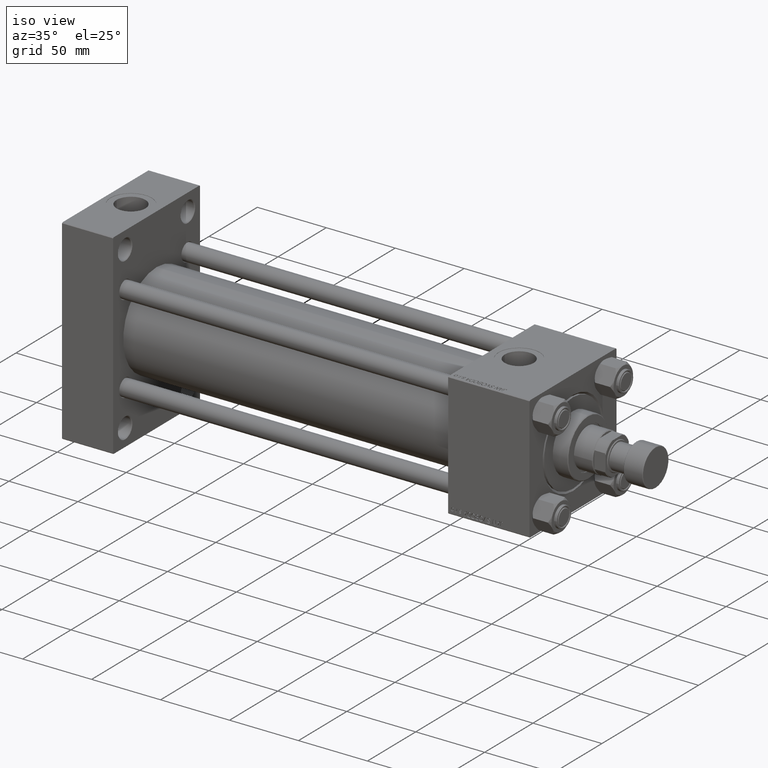
[diagram: clean part render]
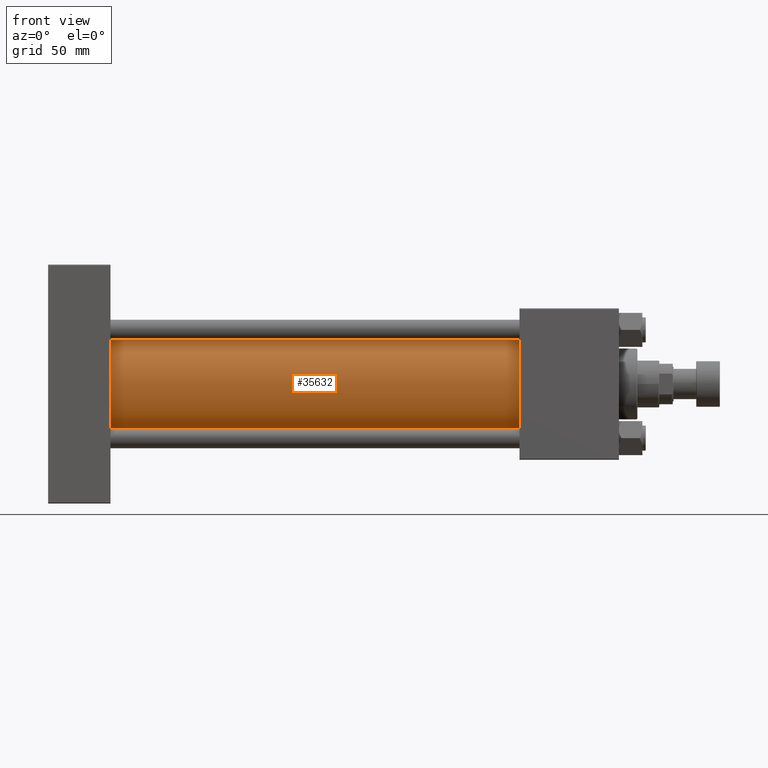
[diagram: tour spotlight — one face highlighted and labeled with its STEP entity id]
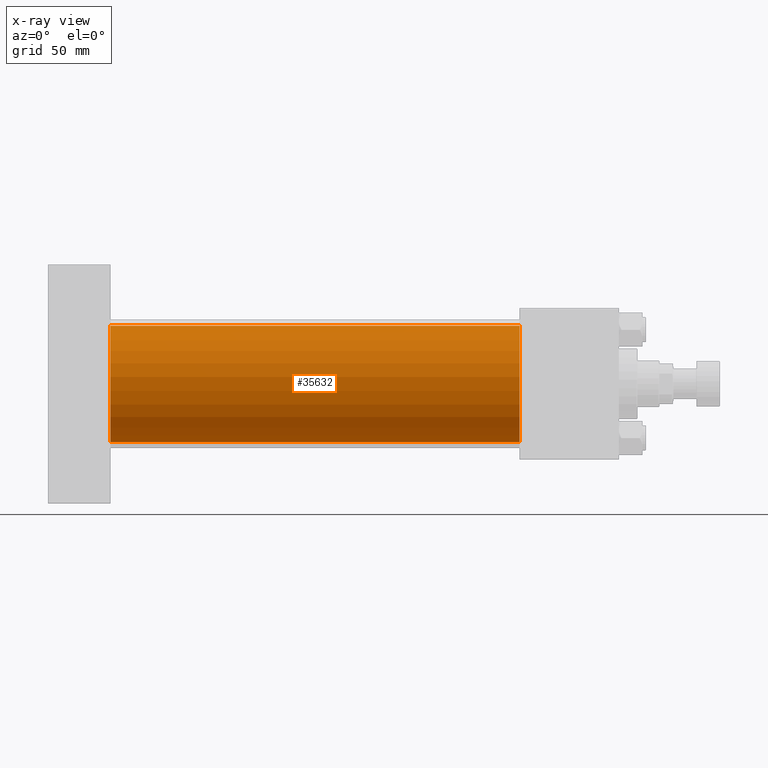
[diagram: x-ray of the same camera — body ghosted, this tour face saturated]
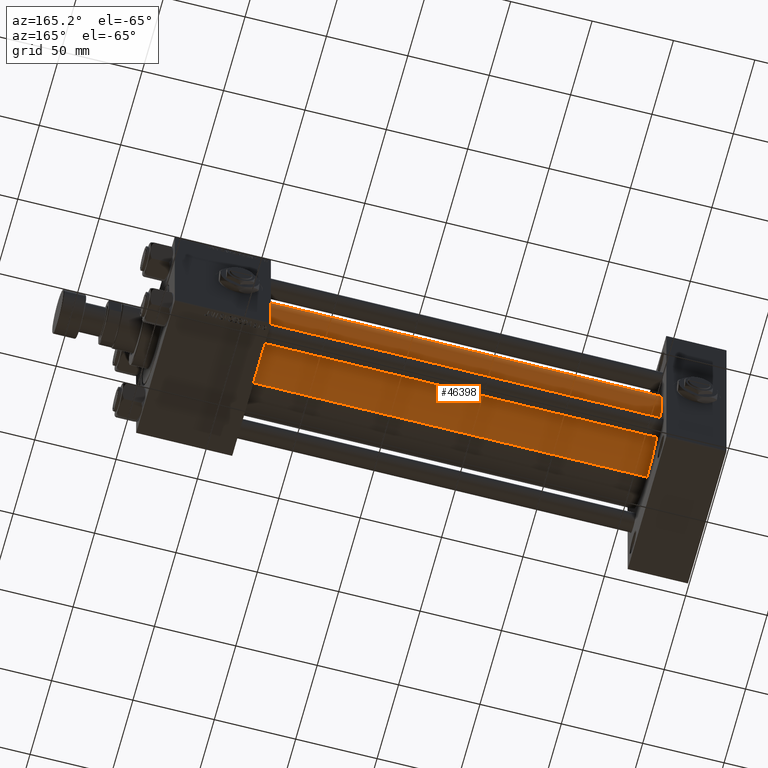
[diagram: tour spotlight — one face highlighted and labeled with its STEP entity id]
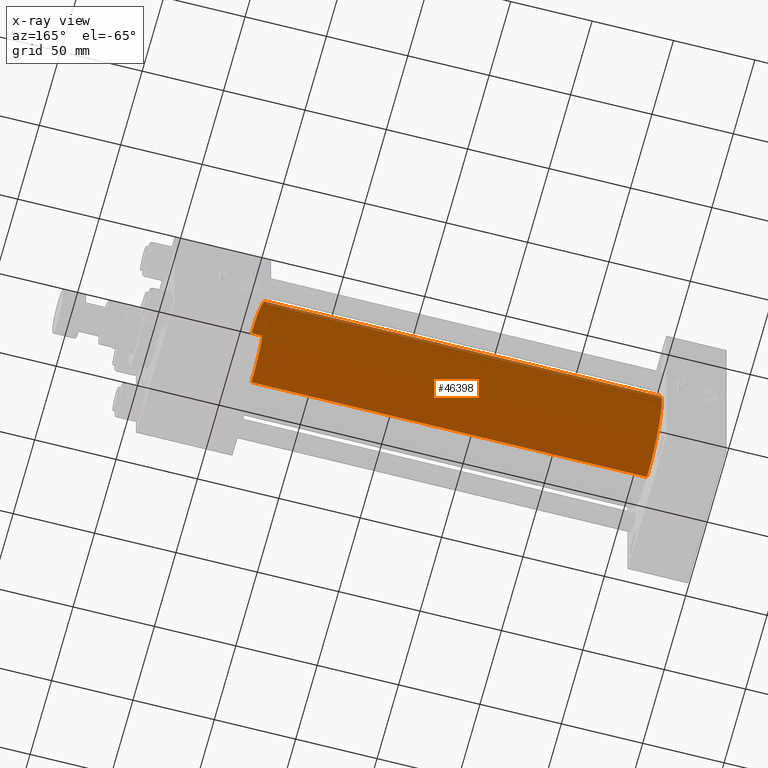
[diagram: x-ray of the same camera — body ghosted, this tour face saturated]
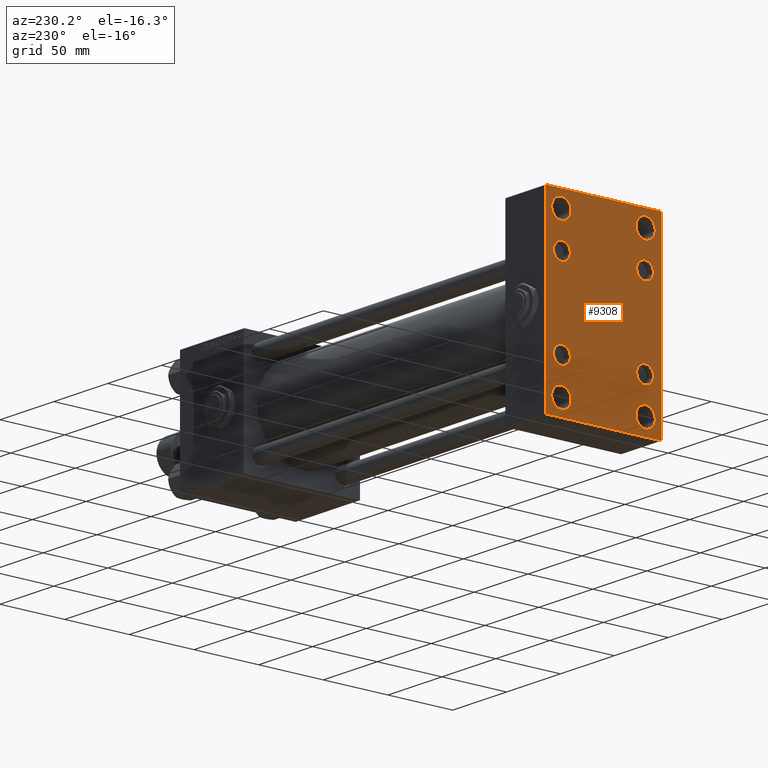
[diagram: tour spotlight — one face highlighted and labeled with its STEP entity id]
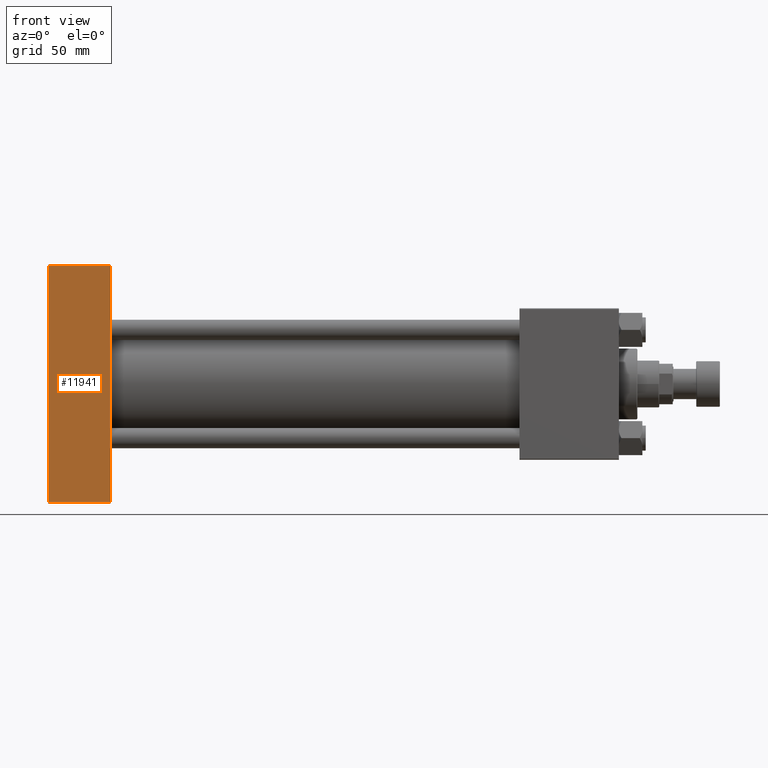
[diagram: tour spotlight — one face highlighted and labeled with its STEP entity id]
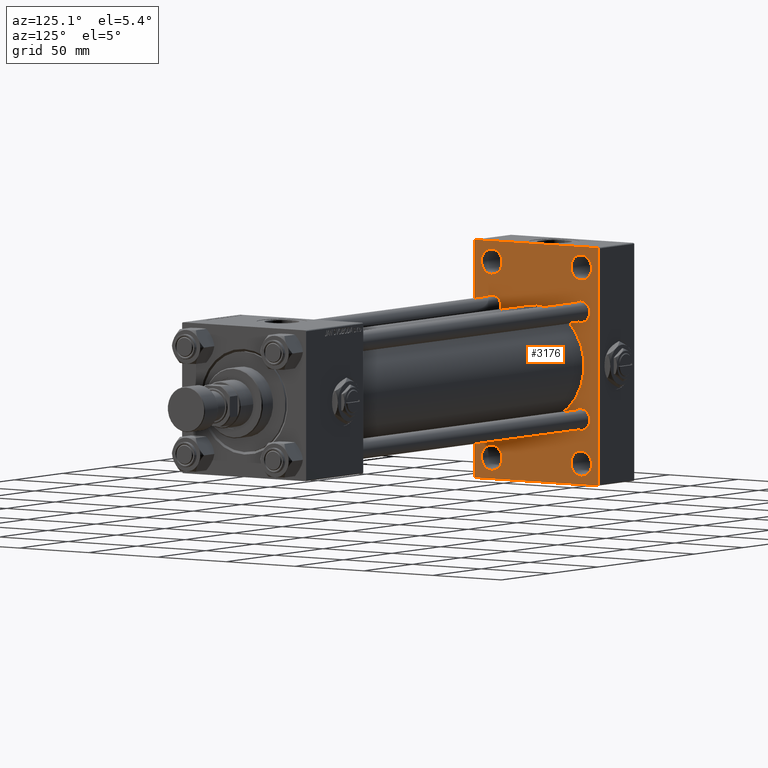
[diagram: tour spotlight — one face highlighted and labeled with its STEP entity id]
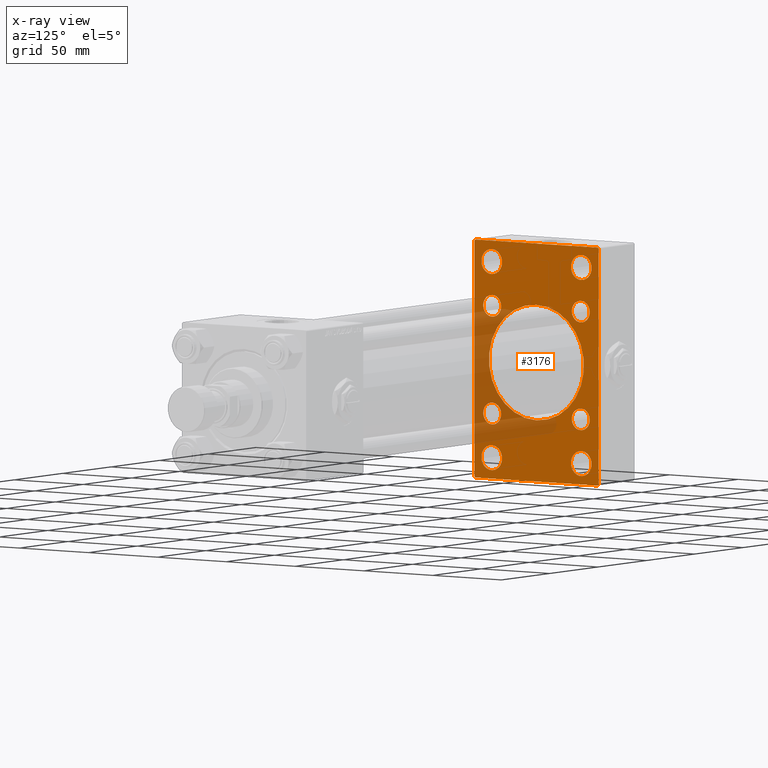
[diagram: x-ray of the same camera — body ghosted, this tour face saturated]
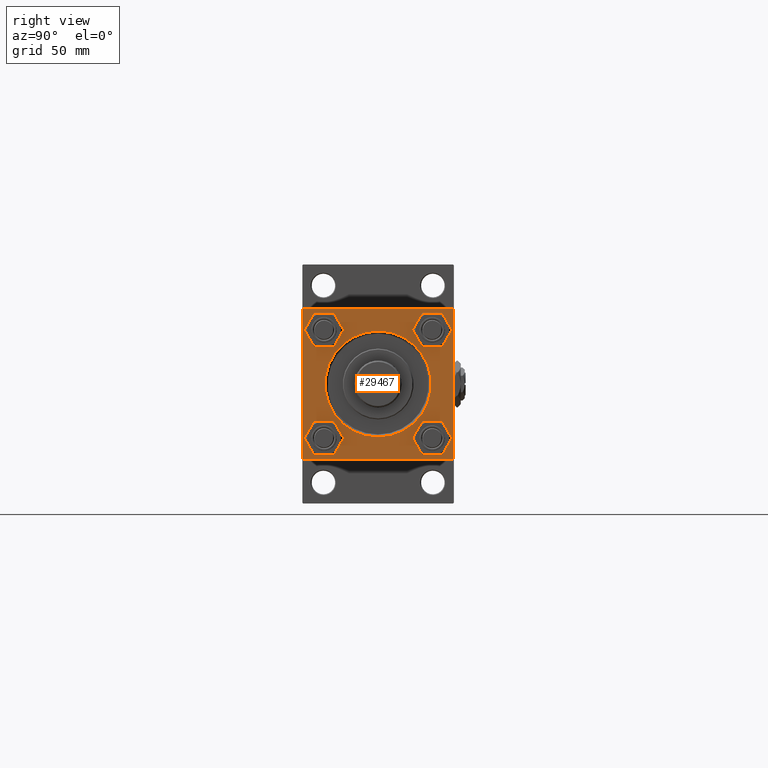
[diagram: tour spotlight — one face highlighted and labeled with its STEP entity id]
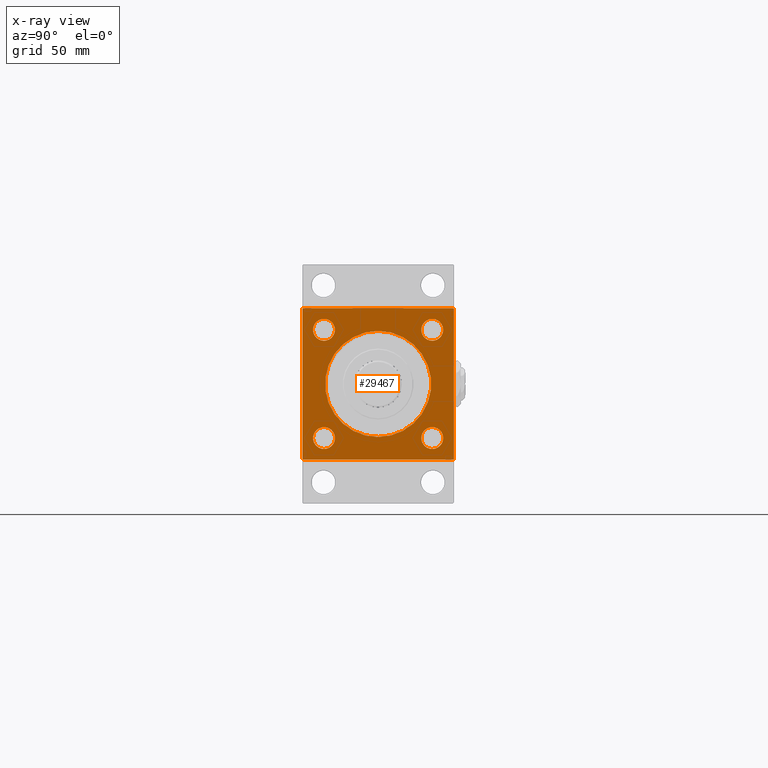
[diagram: x-ray of the same camera — body ghosted, this tour face saturated]
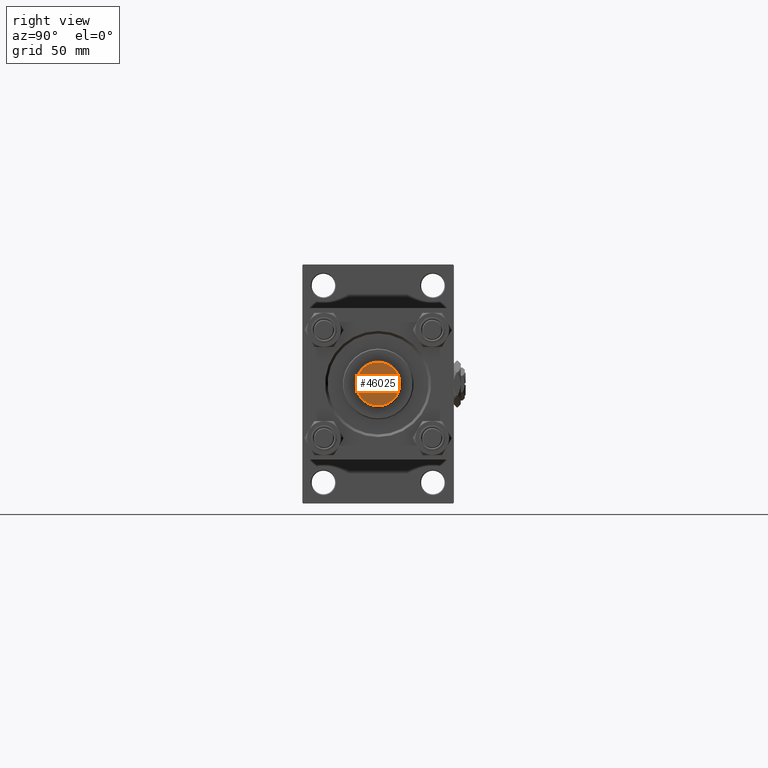
[diagram: tour spotlight — one face highlighted and labeled with its STEP entity id]
A machine part: a face-by-face anatomy tour. The part has 1251 B-rep faces; the first image is the clean iso view, then the 7 largest visible faces are spotlighted one at a time (largest first), each with its STEP entity span.

Face 1 — front view, entity #35632. An x-ray twin of the same camera follows (body ghosted, this face saturated) — the face is partly hidden behind the body. In plain terms, the highlighted cylindrical surface (partial cylindrical patch) has radius 34.5 mm, axis along (-1, -0, -0).
Definition (entity closure, byte-faithful):
#79 = DIRECTION ( 'NONE',  ( 1.000000000000000000, 0.000000000000000000, 0.000000000000000000 ) ) ;
#299 = AXIS2_PLACEMENT_3D ( 'NONE', #35722, #79, #16298 ) ;
#808 = CARTESIAN_POINT ( 'NONE',  ( 279.9999999999999432, -2.602085213965210642E-15, 34.50000000000000000 ) ) ;
#2176 = DIRECTION ( 'NONE',  ( 0.000000000000000000, 0.000000000000000000, 1.000000000000000000 ) ) ;
#3298 = EDGE_LOOP ( 'NONE', ( #25242, #37914, #10629, #4655 ) ) ;
#3816 = CIRCLE ( 'NONE', #50479, 34.50000000000000000 ) ;
#4655 = ORIENTED_EDGE ( 'NONE', *, *, #14896, .T. ) ;
#6970 = DIRECTION ( 'NONE',  ( 1.000000000000000000, 0.000000000000000000, 0.000000000000000000 ) ) ;
#7343 = VERTEX_POINT ( 'NONE', #40428 ) ;
#7357 = VECTOR ( 'NONE', #50442, 1000.000000000000000 ) ;
#10478 = CIRCLE ( 'NONE', #299, 34.50000000000000000 ) ;
#10629 = ORIENTED_EDGE ( 'NONE', *, *, #31681, .T. ) ;
#14061 = VERTEX_POINT ( 'NONE', #28254 ) ;
#14132 = CYLINDRICAL_SURFACE ( 'NONE', #26583, 34.50000000000000000 ) ;
#14896 = EDGE_CURVE ( 'NONE', #14061, #28612, #10478, .T. ) ;
#16298 = DIRECTION ( 'NONE',  ( 0.000000000000000000, 0.000000000000000000, 1.000000000000000000 ) ) ;
#23103 = CARTESIAN_POINT ( 'NONE',  ( 37.00000000000000711, 1.622946243093158675E-15, -34.50000000000000000 ) ) ;
#25242 = ORIENTED_EDGE ( 'NONE', *, *, #47541, .F. ) ;
#25595 = CARTESIAN_POINT ( 'NONE',  ( 279.9999999999999432, 1.622946243093158675E-15, -34.50000000000000000 ) ) ;
#26583 = AXIS2_PLACEMENT_3D ( 'NONE', #37801, #45521, #2176 ) ;
#28254 = CARTESIAN_POINT ( 'NONE',  ( 37.00000000000000711, -2.602085213965210642E-15, 34.50000000000000000 ) ) ;
#28612 = VERTEX_POINT ( 'NONE', #23103 ) ;
#29253 = DIRECTION ( 'NONE',  ( -1.000000000000000000, -0.000000000000000000, -0.000000000000000000 ) ) ;
#31681 = EDGE_CURVE ( 'NONE', #7343, #14061, #49447, .T. ) ;
#33190 = VERTEX_POINT ( 'NONE', #25595 ) ;
#34383 = DIRECTION ( 'NONE',  ( 0.000000000000000000, 0.000000000000000000, -1.000000000000000000 ) ) ;
#35632 = ADVANCED_FACE ( 'NONE', ( #37533 ), #14132, .T. ) ;
#35722 = CARTESIAN_POINT ( 'NONE',  ( 37.00000000000000711, -2.602085213965210642E-15, 0.000000000000000000 ) ) ;
#37533 = FACE_OUTER_BOUND ( 'NONE', #3298, .T. ) ;
#37801 = CARTESIAN_POINT ( 'NONE',  ( 279.9999999999999432, -2.602085213965210642E-15, 0.000000000000000000 ) ) ;
#37914 = ORIENTED_EDGE ( 'NONE', *, *, #38555, .F. ) ;
#38555 = EDGE_CURVE ( 'NONE', #7343, #33190, #3816, .T. ) ;
#39029 = CARTESIAN_POINT ( 'NONE',  ( 279.9999999999999432, 1.622946243093158675E-15, -34.50000000000000000 ) ) ;
#40428 = CARTESIAN_POINT ( 'NONE',  ( 279.9999999999999432, -2.602085213965210642E-15, 34.50000000000000000 ) ) ;
#43283 = LINE ( 'NONE', #39029, #7357 ) ;
#43414 = CARTESIAN_POINT ( 'NONE',  ( 279.9999999999999432, -2.602085213965210642E-15, 0.000000000000000000 ) ) ;
#45521 = DIRECTION ( 'NONE',  ( -1.000000000000000000, -0.000000000000000000, -0.000000000000000000 ) ) ;
#47541 = EDGE_CURVE ( 'NONE', #33190, #28612, #43283, .T. ) ;
#49447 = LINE ( 'NONE', #808, #52577 ) ;
#50442 = DIRECTION ( 'NONE',  ( -1.000000000000000000, -0.000000000000000000, -0.000000000000000000 ) ) ;
#50479 = AXIS2_PLACEMENT_3D ( 'NONE', #43414, #6970, #34383 ) ;
#52577 = VECTOR ( 'NONE', #29253, 1000.000000000000000 ) ;

Face 2 — auxiliary view, entity #46398. An x-ray twin of the same camera follows (body ghosted, this face saturated) — the face is partly hidden behind the body. In plain terms, the highlighted cylindrical surface (partial cylindrical patch) has radius 34.5 mm, axis along (-1, -0, -0).
Definition (entity closure, byte-faithful):
#357 = AXIS2_PLACEMENT_3D ( 'NONE', #10659, #42314, #18111 ) ;
#542 = DIRECTION ( 'NONE',  ( -1.000000000000000000, -0.000000000000000000, -0.000000000000000000 ) ) ;
#808 = CARTESIAN_POINT ( 'NONE',  ( 279.9999999999999432, -2.602085213965210642E-15, 34.50000000000000000 ) ) ;
#1270 = EDGE_CURVE ( 'NONE', #28612, #14061, #46220, .T. ) ;
#6114 = DIRECTION ( 'NONE',  ( 0.000000000000000000, 0.000000000000000000, -1.000000000000000000 ) ) ;
#6381 = CARTESIAN_POINT ( 'NONE',  ( 279.9999999999999432, -2.602085213965210642E-15, 0.000000000000000000 ) ) ;
#7343 = VERTEX_POINT ( 'NONE', #40428 ) ;
#7357 = VECTOR ( 'NONE', #50442, 1000.000000000000000 ) ;
#9825 = CARTESIAN_POINT ( 'NONE',  ( 279.9999999999999432, -2.602085213965210642E-15, 0.000000000000000000 ) ) ;
#9848 = ORIENTED_EDGE ( 'NONE', *, *, #31681, .F. ) ;
#10659 = CARTESIAN_POINT ( 'NONE',  ( 37.00000000000000711, -2.602085213965210642E-15, 0.000000000000000000 ) ) ;
#11576 = AXIS2_PLACEMENT_3D ( 'NONE', #9825, #542, #28982 ) ;
#11624 = EDGE_LOOP ( 'NONE', ( #26344, #23130, #35782, #9848 ) ) ;
#14061 = VERTEX_POINT ( 'NONE', #28254 ) ;
#18111 = DIRECTION ( 'NONE',  ( 0.000000000000000000, 0.000000000000000000, 1.000000000000000000 ) ) ;
#22373 = EDGE_CURVE ( 'NONE', #33190, #7343, #31018, .T. ) ;
#23103 = CARTESIAN_POINT ( 'NONE',  ( 37.00000000000000711, 1.622946243093158675E-15, -34.50000000000000000 ) ) ;
#23130 = ORIENTED_EDGE ( 'NONE', *, *, #47541, .T. ) ;
#25595 = CARTESIAN_POINT ( 'NONE',  ( 279.9999999999999432, 1.622946243093158675E-15, -34.50000000000000000 ) ) ;
#26066 = DIRECTION ( 'NONE',  ( 1.000000000000000000, 0.000000000000000000, 0.000000000000000000 ) ) ;
#26344 = ORIENTED_EDGE ( 'NONE', *, *, #22373, .F. ) ;
#28254 = CARTESIAN_POINT ( 'NONE',  ( 37.00000000000000711, -2.602085213965210642E-15, 34.50000000000000000 ) ) ;
#28612 = VERTEX_POINT ( 'NONE', #23103 ) ;
#28982 = DIRECTION ( 'NONE',  ( 0.000000000000000000, 0.000000000000000000, 1.000000000000000000 ) ) ;
#29253 = DIRECTION ( 'NONE',  ( -1.000000000000000000, -0.000000000000000000, -0.000000000000000000 ) ) ;
#30036 = FACE_OUTER_BOUND ( 'NONE', #11624, .T. ) ;
#31018 = CIRCLE ( 'NONE', #36105, 34.50000000000000000 ) ;
#31681 = EDGE_CURVE ( 'NONE', #7343, #14061, #49447, .T. ) ;
#33190 = VERTEX_POINT ( 'NONE', #25595 ) ;
#35782 = ORIENTED_EDGE ( 'NONE', *, *, #1270, .T. ) ;
#36105 = AXIS2_PLACEMENT_3D ( 'NONE', #6381, #26066, #6114 ) ;
#39029 = CARTESIAN_POINT ( 'NONE',  ( 279.9999999999999432, 1.622946243093158675E-15, -34.50000000000000000 ) ) ;
#40428 = CARTESIAN_POINT ( 'NONE',  ( 279.9999999999999432, -2.602085213965210642E-15, 34.50000000000000000 ) ) ;
#42314 = DIRECTION ( 'NONE',  ( 1.000000000000000000, 0.000000000000000000, 0.000000000000000000 ) ) ;
#43283 = LINE ( 'NONE', #39029, #7357 ) ;
#46220 = CIRCLE ( 'NONE', #357, 34.50000000000000000 ) ;
#46269 = CYLINDRICAL_SURFACE ( 'NONE', #11576, 34.50000000000000000 ) ;
#46398 = ADVANCED_FACE ( 'NONE', ( #30036 ), #46269, .T. ) ;
#47541 = EDGE_CURVE ( 'NONE', #33190, #28612, #43283, .T. ) ;
#49447 = LINE ( 'NONE', #808, #52577 ) ;
#50442 = DIRECTION ( 'NONE',  ( -1.000000000000000000, -0.000000000000000000, -0.000000000000000000 ) ) ;
#52577 = VECTOR ( 'NONE', #29253, 1000.000000000000000 ) ;

Face 3 — auxiliary view, entity #9308. In plain terms, the highlighted planar face has unit normal (-1, 0, 0).
Definition (entity closure, byte-faithful):
#16 = VERTEX_POINT ( 'NONE', #6733 ) ;
#160 = AXIS2_PLACEMENT_3D ( 'NONE', #32420, #41702, #16466 ) ;
#307 = AXIS2_PLACEMENT_3D ( 'NONE', #25976, #38738, #33950 ) ;
#399 = VERTEX_POINT ( 'NONE', #17313 ) ;
#765 = CARTESIAN_POINT ( 'NONE',  ( 0.000000000000000000, -45.00000000000000000, 70.99999999999998579 ) ) ;
#1004 = DIRECTION ( 'NONE',  ( -0.000000000000000000, 0.000000000000000000, 1.000000000000000000 ) ) ;
#1068 = EDGE_CURVE ( 'NONE', #23752, #3389, #15659, .T. ) ;
#1469 = DIRECTION ( 'NONE',  ( 0.000000000000000000, -1.000000000000000000, -1.541976423090495387E-16 ) ) ;
#1968 = CARTESIAN_POINT ( 'NONE',  ( 0.000000000000000000, 32.14999999999999147, 32.15000000000000568 ) ) ;
#2019 = ORIENTED_EDGE ( 'NONE', *, *, #31143, .T. ) ;
#2440 = CIRCLE ( 'NONE', #44044, 6.500000000000033751 ) ;
#2908 = CIRCLE ( 'NONE', #28374, 6.500000000000033751 ) ;
#3302 = DIRECTION ( 'NONE',  ( 0.000000000000000000, 0.000000000000000000, 1.000000000000000000 ) ) ;
#3389 = VERTEX_POINT ( 'NONE', #41326 ) ;
#3829 = CARTESIAN_POINT ( 'NONE',  ( 0.000000000000000000, -57.74999999999968026, -57.75000000000048317 ) ) ;
#4213 = EDGE_CURVE ( 'NONE', #5979, #49951, #2908, .T. ) ;
#4338 = CARTESIAN_POINT ( 'NONE',  ( 0.000000000000000000, -32.50000000000000000, 58.50000000000000000 ) ) ;
#4739 = DIRECTION ( 'NONE',  ( -1.000000000000000000, 0.000000000000000000, -0.000000000000000000 ) ) ;
#4752 = DIRECTION ( 'NONE',  ( 1.000000000000000000, 0.000000000000000000, 0.000000000000000000 ) ) ;
#5277 = VERTEX_POINT ( 'NONE', #15336 ) ;
#5469 = VECTOR ( 'NONE', #40198, 1000.000000000000000 ) ;
#5527 = PLANE ( 'NONE',  #44274 ) ;
#5531 = EDGE_CURVE ( 'NONE', #42290, #399, #39466, .T. ) ;
#5745 = DIRECTION ( 'NONE',  ( 0.000000000000000000, 0.000000000000000000, 1.000000000000000000 ) ) ;
#5979 = VERTEX_POINT ( 'NONE', #18553 ) ;
#6457 = ORIENTED_EDGE ( 'NONE', *, *, #26490, .T. ) ;
#6584 = CARTESIAN_POINT ( 'NONE',  ( -0.000000000000000000, -57.75000000000092371, 57.74999999999852207 ) ) ;
#6733 = CARTESIAN_POINT ( 'NONE',  ( 0.000000000000000000, -32.14999999999997726, 25.64999999999997726 ) ) ;
#6937 = EDGE_CURVE ( 'NONE', #399, #37664, #51552, .T. ) ;
#7224 = VERTEX_POINT ( 'NONE', #42581 ) ;
#7500 = LINE ( 'NONE', #20008, #5469 ) ;
#7862 = ORIENTED_EDGE ( 'NONE', *, *, #25126, .T. ) ;
#7974 = DIRECTION ( 'NONE',  ( 0.000000000000000000, 0.000000000000000000, 1.000000000000000000 ) ) ;
#8049 = AXIS2_PLACEMENT_3D ( 'NONE', #43406, #11209, #42892 ) ;
#8321 = ORIENTED_EDGE ( 'NONE', *, *, #30067, .T. ) ;
#8334 = DIRECTION ( 'NONE',  ( 1.000000000000000000, 0.000000000000000000, 0.000000000000000000 ) ) ;
#8720 = FACE_BOUND ( 'NONE', #29128, .T. ) ;
#8998 = EDGE_LOOP ( 'NONE', ( #22390, #29346, #13026, #2019, #25052, #36381, #31336, #34114 ) ) ;
#9164 = LINE ( 'NONE', #17153, #16888 ) ;
#9308 = ADVANCED_FACE ( 'NONE', ( #28933, #25713, #45163, #8720, #13500, #29189, #16971, #37437, #24933 ), #5527, .T. ) ;
#9341 = ORIENTED_EDGE ( 'NONE', *, *, #11277, .T. ) ;
#9589 = CIRCLE ( 'NONE', #37620, 7.500000000000229150 ) ;
#9968 = CARTESIAN_POINT ( 'NONE',  ( 0.000000000000000000, 32.50000000000000000, 50.99999999999977263 ) ) ;
#10531 = VERTEX_POINT ( 'NONE', #17636 ) ;
#11209 = DIRECTION ( 'NONE',  ( 1.000000000000000000, 0.000000000000000000, 0.000000000000000000 ) ) ;
#11277 = EDGE_CURVE ( 'NONE', #49951, #5979, #15414, .T. ) ;
#11502 = DIRECTION ( 'NONE',  ( 1.000000000000000000, 0.000000000000000000, 0.000000000000000000 ) ) ;
#12106 = DIRECTION ( 'NONE',  ( 1.000000000000000000, 0.000000000000000000, 0.000000000000000000 ) ) ;
#12445 = VERTEX_POINT ( 'NONE', #46449 ) ;
#12986 = CARTESIAN_POINT ( 'NONE',  ( 0.000000000000000000, -32.50000000000000000, -58.50000000000000711 ) ) ;
#13026 = ORIENTED_EDGE ( 'NONE', *, *, #26821, .T. ) ;
#13053 = CARTESIAN_POINT ( 'NONE',  ( 0.000000000000000000, 32.50000000000000000, 58.50000000000000000 ) ) ;
#13310 = VERTEX_POINT ( 'NONE', #50472 ) ;
#13412 = CARTESIAN_POINT ( 'NONE',  ( 0.000000000000000000, -32.50000000000000000, 50.99999999999976552 ) ) ;
#13500 = FACE_BOUND ( 'NONE', #45667, .T. ) ;
#13842 = CARTESIAN_POINT ( 'NONE',  ( 0.000000000000000000, -44.49999999999999289, -70.99999999999998579 ) ) ;
#13989 = DIRECTION ( 'NONE',  ( 1.000000000000000000, 0.000000000000000000, 0.000000000000000000 ) ) ;
#14812 = CIRCLE ( 'NONE', #23309, 7.500000000000229150 ) ;
#14919 = DIRECTION ( 'NONE',  ( 0.000000000000000000, -1.000000000000000000, 0.000000000000000000 ) ) ;
#14926 = CIRCLE ( 'NONE', #19058, 7.500000000000214939 ) ;
#15000 = CIRCLE ( 'NONE', #31995, 7.500000000000229150 ) ;
#15336 = CARTESIAN_POINT ( 'NONE',  ( 0.000000000000000000, 32.50000000000000000, -50.99999999999977973 ) ) ;
#15414 = CIRCLE ( 'NONE', #160, 6.500000000000033751 ) ;
#15659 = CIRCLE ( 'NONE', #26712, 6.500000000000033751 ) ;
#15795 = DIRECTION ( 'NONE',  ( 0.000000000000000000, -0.7071067811865524577, 0.7071067811865426878 ) ) ;
#16466 = DIRECTION ( 'NONE',  ( 0.000000000000000000, 0.000000000000000000, 1.000000000000000000 ) ) ;
#16888 = VECTOR ( 'NONE', #1469, 1000.000000000000000 ) ;
#16971 = FACE_BOUND ( 'NONE', #36779, .T. ) ;
#17040 = EDGE_CURVE ( 'NONE', #45393, #13310, #14812, .T. ) ;
#17104 = ORIENTED_EDGE ( 'NONE', *, *, #48597, .T. ) ;
#17153 = CARTESIAN_POINT ( 'NONE',  ( 0.000000000000000000, 45.00000000000000711, 71.00000000000000000 ) ) ;
#17241 = DIRECTION ( 'NONE',  ( 0.000000000000000000, 0.000000000000000000, -1.000000000000000000 ) ) ;
#17313 = CARTESIAN_POINT ( 'NONE',  ( 0.000000000000000000, 45.00000000000000711, 70.50000000000000000 ) ) ;
#17356 = VECTOR ( 'NONE', #18740, 1000.000000000000000 ) ;
#17458 = CARTESIAN_POINT ( 'NONE',  ( 0.000000000000000000, -45.00000000000000000, -70.50000000000000000 ) ) ;
#17636 = CARTESIAN_POINT ( 'NONE',  ( 0.000000000000000000, -44.49999999999999289, 70.99999999999998579 ) ) ;
#17859 = CARTESIAN_POINT ( 'NONE',  ( 0.000000000000000000, -32.50000000000000000, 66.00000000000022737 ) ) ;
#17932 = ORIENTED_EDGE ( 'NONE', *, *, #43052, .T. ) ;
#18186 = DIRECTION ( 'NONE',  ( 0.000000000000000000, 0.000000000000000000, 1.000000000000000000 ) ) ;
#18205 = EDGE_CURVE ( 'NONE', #3389, #23752, #20798, .T. ) ;
#18220 = VERTEX_POINT ( 'NONE', #22936 ) ;
#18279 = AXIS2_PLACEMENT_3D ( 'NONE', #39882, #32702, #7974 ) ;
#18553 = CARTESIAN_POINT ( 'NONE',  ( 0.000000000000000000, -32.14999999999997726, -38.65000000000004832 ) ) ;
#18740 = DIRECTION ( 'NONE',  ( 0.000000000000000000, 0.7071067811865573427, -0.7071067811865378028 ) ) ;
#18903 = LINE ( 'NONE', #31642, #30323 ) ;
#19027 = CARTESIAN_POINT ( 'NONE',  ( 0.000000000000000000, -32.14999999999997726, -25.64999999999997726 ) ) ;
#19058 = AXIS2_PLACEMENT_3D ( 'NONE', #13053, #29805, #46304 ) ;
#19393 = AXIS2_PLACEMENT_3D ( 'NONE', #24079, #12106, #28336 ) ;
#19545 = EDGE_LOOP ( 'NONE', ( #7862, #8321 ) ) ;
#19751 = DIRECTION ( 'NONE',  ( 0.000000000000000000, 0.000000000000000000, 1.000000000000000000 ) ) ;
#19871 = AXIS2_PLACEMENT_3D ( 'NONE', #33111, #24345, #45864 ) ;
#20008 = CARTESIAN_POINT ( 'NONE',  ( -0.000000000000000000, 57.75000000000122924, -57.74999999999802469 ) ) ;
#20085 = CARTESIAN_POINT ( 'NONE',  ( 0.000000000000000000, 44.50000000000000711, 71.00000000000000000 ) ) ;
#20151 = EDGE_CURVE ( 'NONE', #12445, #22042, #14926, .T. ) ;
#20228 = VERTEX_POINT ( 'NONE', #13842 ) ;
#20683 = ORIENTED_EDGE ( 'NONE', *, *, #17040, .T. ) ;
#20798 = CIRCLE ( 'NONE', #8049, 6.500000000000033751 ) ;
#22042 = VERTEX_POINT ( 'NONE', #9968 ) ;
#22390 = ORIENTED_EDGE ( 'NONE', *, *, #6937, .T. ) ;
#22712 = AXIS2_PLACEMENT_3D ( 'NONE', #24434, #4752, #29202 ) ;
#22936 = CARTESIAN_POINT ( 'NONE',  ( 0.000000000000000000, 32.14999999999999147, -38.64999999999998437 ) ) ;
#23309 = AXIS2_PLACEMENT_3D ( 'NONE', #12986, #24956, #44396 ) ;
#23747 = CARTESIAN_POINT ( 'NONE',  ( 0.000000000000000000, -32.50000000000000000, -58.50000000000000711 ) ) ;
#23752 = VERTEX_POINT ( 'NONE', #37678 ) ;
#24079 = CARTESIAN_POINT ( 'NONE',  ( 0.000000000000000000, -32.50000000000000000, 58.50000000000000000 ) ) ;
#24105 = VECTOR ( 'NONE', #17241, 1000.000000000000000 ) ;
#24133 = DIRECTION ( 'NONE',  ( 1.000000000000000000, 0.000000000000000000, 0.000000000000000000 ) ) ;
#24345 = DIRECTION ( 'NONE',  ( 1.000000000000000000, 0.000000000000000000, 0.000000000000000000 ) ) ;
#24415 = ORIENTED_EDGE ( 'NONE', *, *, #18205, .T. ) ;
#24434 = CARTESIAN_POINT ( 'NONE',  ( 0.000000000000000000, -32.14999999999997726, 32.15000000000001279 ) ) ;
#24485 = EDGE_LOOP ( 'NONE', ( #43420, #28891 ) ) ;
#24933 = FACE_OUTER_BOUND ( 'NONE', #8998, .T. ) ;
#24956 = DIRECTION ( 'NONE',  ( 1.000000000000000000, 0.000000000000000000, 0.000000000000000000 ) ) ;
#25022 = EDGE_LOOP ( 'NONE', ( #20683, #35096 ) ) ;
#25052 = ORIENTED_EDGE ( 'NONE', *, *, #40881, .F. ) ;
#25126 = EDGE_CURVE ( 'NONE', #50998, #27251, #15000, .T. ) ;
#25179 = ORIENTED_EDGE ( 'NONE', *, *, #1068, .T. ) ;
#25495 = CARTESIAN_POINT ( 'NONE',  ( 0.000000000000000000, -32.14999999999997726, -32.15000000000001279 ) ) ;
#25619 = CARTESIAN_POINT ( 'NONE',  ( 0.000000000000000000, 32.14999999999999147, -25.65000000000002700 ) ) ;
#25713 = FACE_BOUND ( 'NONE', #19545, .T. ) ;
#25976 = CARTESIAN_POINT ( 'NONE',  ( 0.000000000000000000, 32.50000000000000000, -58.50000000000000711 ) ) ;
#26273 = LINE ( 'NONE', #6584, #27137 ) ;
#26444 = CARTESIAN_POINT ( 'NONE',  ( -0.000000000000000000, 57.74999999999938183, 57.75000000000098055 ) ) ;
#26490 = EDGE_CURVE ( 'NONE', #5277, #35989, #31164, .T. ) ;
#26712 = AXIS2_PLACEMENT_3D ( 'NONE', #1968, #26959, #18186 ) ;
#26821 = EDGE_CURVE ( 'NONE', #43312, #20228, #18903, .T. ) ;
#26959 = DIRECTION ( 'NONE',  ( 1.000000000000000000, 0.000000000000000000, 0.000000000000000000 ) ) ;
#26964 = DIRECTION ( 'NONE',  ( 1.000000000000000000, 0.000000000000000000, 0.000000000000000000 ) ) ;
#27137 = VECTOR ( 'NONE', #42486, 1000.000000000000000 ) ;
#27251 = VERTEX_POINT ( 'NONE', #13412 ) ;
#27761 = LINE ( 'NONE', #3829, #37264 ) ;
#27892 = CIRCLE ( 'NONE', #19393, 7.500000000000229150 ) ;
#28222 = ORIENTED_EDGE ( 'NONE', *, *, #34879, .T. ) ;
#28336 = DIRECTION ( 'NONE',  ( 0.000000000000000000, 0.000000000000000000, 1.000000000000000000 ) ) ;
#28374 = AXIS2_PLACEMENT_3D ( 'NONE', #25495, #33477, #49687 ) ;
#28891 = ORIENTED_EDGE ( 'NONE', *, *, #36357, .T. ) ;
#28908 = CARTESIAN_POINT ( 'NONE',  ( 0.000000000000000000, -32.14999999999997726, 32.15000000000001279 ) ) ;
#28933 = FACE_BOUND ( 'NONE', #24485, .T. ) ;
#29128 = EDGE_LOOP ( 'NONE', ( #6457, #31007 ) ) ;
#29179 = VERTEX_POINT ( 'NONE', #47496 ) ;
#29189 = FACE_BOUND ( 'NONE', #43546, .T. ) ;
#29202 = DIRECTION ( 'NONE',  ( 0.000000000000000000, 0.000000000000000000, 1.000000000000000000 ) ) ;
#29346 = ORIENTED_EDGE ( 'NONE', *, *, #41806, .T. ) ;
#29805 = DIRECTION ( 'NONE',  ( 1.000000000000000000, 0.000000000000000000, 0.000000000000000000 ) ) ;
#30067 = EDGE_CURVE ( 'NONE', #27251, #50998, #27892, .T. ) ;
#30323 = VECTOR ( 'NONE', #14919, 1000.000000000000000 ) ;
#30331 = CIRCLE ( 'NONE', #22712, 6.500000000000033751 ) ;
#30634 = ORIENTED_EDGE ( 'NONE', *, *, #51548, .T. ) ;
#30839 = EDGE_CURVE ( 'NONE', #42290, #10531, #9164, .T. ) ;
#31007 = ORIENTED_EDGE ( 'NONE', *, *, #36052, .T. ) ;
#31143 = EDGE_CURVE ( 'NONE', #20228, #42183, #27761, .T. ) ;
#31164 = CIRCLE ( 'NONE', #42206, 7.500000000000229150 ) ;
#31336 = ORIENTED_EDGE ( 'NONE', *, *, #30839, .F. ) ;
#31364 = DIRECTION ( 'NONE',  ( 0.000000000000000000, 0.000000000000000000, -1.000000000000000000 ) ) ;
#31455 = CARTESIAN_POINT ( 'NONE',  ( 0.000000000000000000, 32.50000000000000000, -58.50000000000000711 ) ) ;
#31642 = CARTESIAN_POINT ( 'NONE',  ( 0.000000000000000000, 45.00000000000000711, -70.99999999999998579 ) ) ;
#31995 = AXIS2_PLACEMENT_3D ( 'NONE', #4338, #8334, #3302 ) ;
#32420 = CARTESIAN_POINT ( 'NONE',  ( 0.000000000000000000, -32.14999999999997726, -32.15000000000001279 ) ) ;
#32607 = EDGE_CURVE ( 'NONE', #29179, #10531, #26273, .T. ) ;
#32702 = DIRECTION ( 'NONE',  ( 1.000000000000000000, 0.000000000000000000, 0.000000000000000000 ) ) ;
#33111 = CARTESIAN_POINT ( 'NONE',  ( 0.000000000000000000, 32.50000000000000000, 58.50000000000000000 ) ) ;
#33346 = CARTESIAN_POINT ( 'NONE',  ( 0.000000000000000000, 44.50000000000002132, -70.99999999999998579 ) ) ;
#33477 = DIRECTION ( 'NONE',  ( 1.000000000000000000, 0.000000000000000000, 0.000000000000000000 ) ) ;
#33950 = DIRECTION ( 'NONE',  ( 0.000000000000000000, 0.000000000000000000, 1.000000000000000000 ) ) ;
#34114 = ORIENTED_EDGE ( 'NONE', *, *, #5531, .T. ) ;
#34828 = CARTESIAN_POINT ( 'NONE',  ( 0.000000000000000000, -32.50000000000000000, -50.99999999999977973 ) ) ;
#34879 = EDGE_CURVE ( 'NONE', #42453, #18220, #46931, .T. ) ;
#35096 = ORIENTED_EDGE ( 'NONE', *, *, #35542, .T. ) ;
#35542 = EDGE_CURVE ( 'NONE', #13310, #45393, #9589, .T. ) ;
#35974 = DIRECTION ( 'NONE',  ( 0.000000000000000000, 0.000000000000000000, 1.000000000000000000 ) ) ;
#35989 = VERTEX_POINT ( 'NONE', #45397 ) ;
#36052 = EDGE_CURVE ( 'NONE', #35989, #5277, #41074, .T. ) ;
#36357 = EDGE_CURVE ( 'NONE', #22042, #12445, #38535, .T. ) ;
#36381 = ORIENTED_EDGE ( 'NONE', *, *, #32607, .T. ) ;
#36779 = EDGE_LOOP ( 'NONE', ( #28222, #17932 ) ) ;
#37264 = VECTOR ( 'NONE', #15795, 1000.000000000000000 ) ;
#37437 = FACE_BOUND ( 'NONE', #52319, .T. ) ;
#37620 = AXIS2_PLACEMENT_3D ( 'NONE', #23747, #26964, #35974 ) ;
#37664 = VERTEX_POINT ( 'NONE', #41742 ) ;
#37678 = CARTESIAN_POINT ( 'NONE',  ( 0.000000000000000000, 32.14999999999999147, 38.65000000000004832 ) ) ;
#38535 = CIRCLE ( 'NONE', #19871, 7.500000000000214939 ) ;
#38738 = DIRECTION ( 'NONE',  ( 1.000000000000000000, 0.000000000000000000, 0.000000000000000000 ) ) ;
#39466 = LINE ( 'NONE', #26444, #17356 ) ;
#39882 = CARTESIAN_POINT ( 'NONE',  ( 0.000000000000000000, 32.14999999999999147, -32.15000000000000568 ) ) ;
#40198 = DIRECTION ( 'NONE',  ( -0.000000000000000000, -0.7071067811865279218, -0.7071067811865671127 ) ) ;
#40667 = LINE ( 'NONE', #765, #24105 ) ;
#40881 = EDGE_CURVE ( 'NONE', #29179, #42183, #40667, .T. ) ;
#41074 = CIRCLE ( 'NONE', #307, 7.500000000000229150 ) ;
#41169 = CARTESIAN_POINT ( 'NONE',  ( 0.000000000000000000, 0.000000000000000000, 0.000000000000000000 ) ) ;
#41326 = CARTESIAN_POINT ( 'NONE',  ( 0.000000000000000000, 32.14999999999999147, 25.64999999999997016 ) ) ;
#41702 = DIRECTION ( 'NONE',  ( 1.000000000000000000, 0.000000000000000000, 0.000000000000000000 ) ) ;
#41742 = CARTESIAN_POINT ( 'NONE',  ( 0.000000000000000000, 45.00000000000000711, -70.49999999999997158 ) ) ;
#41806 = EDGE_CURVE ( 'NONE', #37664, #43312, #7500, .T. ) ;
#42183 = VERTEX_POINT ( 'NONE', #17458 ) ;
#42206 = AXIS2_PLACEMENT_3D ( 'NONE', #31455, #11502, #19751 ) ;
#42290 = VERTEX_POINT ( 'NONE', #20085 ) ;
#42453 = VERTEX_POINT ( 'NONE', #25619 ) ;
#42486 = DIRECTION ( 'NONE',  ( -0.000000000000000000, 0.7071067811865328068, 0.7071067811865622277 ) ) ;
#42487 = VECTOR ( 'NONE', #31364, 1000.000000000000000 ) ;
#42581 = CARTESIAN_POINT ( 'NONE',  ( 0.000000000000000000, -32.14999999999997726, 38.65000000000004832 ) ) ;
#42701 = CARTESIAN_POINT ( 'NONE',  ( 0.000000000000000000, 32.14999999999999147, -32.15000000000000568 ) ) ;
#42892 = DIRECTION ( 'NONE',  ( 0.000000000000000000, 0.000000000000000000, 1.000000000000000000 ) ) ;
#43052 = EDGE_CURVE ( 'NONE', #18220, #42453, #43739, .T. ) ;
#43312 = VERTEX_POINT ( 'NONE', #33346 ) ;
#43406 = CARTESIAN_POINT ( 'NONE',  ( 0.000000000000000000, 32.14999999999999147, 32.15000000000000568 ) ) ;
#43420 = ORIENTED_EDGE ( 'NONE', *, *, #20151, .T. ) ;
#43546 = EDGE_LOOP ( 'NONE', ( #9341, #51329 ) ) ;
#43739 = CIRCLE ( 'NONE', #18279, 6.499999999999977796 ) ;
#44044 = AXIS2_PLACEMENT_3D ( 'NONE', #28908, #24133, #49365 ) ;
#44274 = AXIS2_PLACEMENT_3D ( 'NONE', #41169, #4739, #1004 ) ;
#44396 = DIRECTION ( 'NONE',  ( 0.000000000000000000, 0.000000000000000000, 1.000000000000000000 ) ) ;
#45163 = FACE_BOUND ( 'NONE', #25022, .T. ) ;
#45393 = VERTEX_POINT ( 'NONE', #34828 ) ;
#45397 = CARTESIAN_POINT ( 'NONE',  ( 0.000000000000000000, 32.50000000000000000, -66.00000000000022737 ) ) ;
#45667 = EDGE_LOOP ( 'NONE', ( #30634, #17104 ) ) ;
#45864 = DIRECTION ( 'NONE',  ( 0.000000000000000000, 0.000000000000000000, 1.000000000000000000 ) ) ;
#46304 = DIRECTION ( 'NONE',  ( 0.000000000000000000, 0.000000000000000000, 1.000000000000000000 ) ) ;
#46449 = CARTESIAN_POINT ( 'NONE',  ( 0.000000000000000000, 32.50000000000000000, 66.00000000000022737 ) ) ;
#46805 = CARTESIAN_POINT ( 'NONE',  ( 0.000000000000000000, 45.00000000000000711, 71.00000000000000000 ) ) ;
#46931 = CIRCLE ( 'NONE', #47794, 6.499999999999977796 ) ;
#47496 = CARTESIAN_POINT ( 'NONE',  ( 0.000000000000000000, -45.00000000000000000, 70.49999999999998579 ) ) ;
#47794 = AXIS2_PLACEMENT_3D ( 'NONE', #42701, #13989, #5745 ) ;
#48597 = EDGE_CURVE ( 'NONE', #16, #7224, #30331, .T. ) ;
#49365 = DIRECTION ( 'NONE',  ( 0.000000000000000000, 0.000000000000000000, 1.000000000000000000 ) ) ;
#49687 = DIRECTION ( 'NONE',  ( 0.000000000000000000, 0.000000000000000000, 1.000000000000000000 ) ) ;
#49951 = VERTEX_POINT ( 'NONE', #19027 ) ;
#50472 = CARTESIAN_POINT ( 'NONE',  ( 0.000000000000000000, -32.50000000000000000, -66.00000000000022737 ) ) ;
#50998 = VERTEX_POINT ( 'NONE', #17859 ) ;
#51329 = ORIENTED_EDGE ( 'NONE', *, *, #4213, .T. ) ;
#51548 = EDGE_CURVE ( 'NONE', #7224, #16, #2440, .T. ) ;
#51552 = LINE ( 'NONE', #46805, #42487 ) ;
#52319 = EDGE_LOOP ( 'NONE', ( #25179, #24415 ) ) ;

Face 4 — front view, entity #11941. In plain terms, the highlighted planar face has unit normal (0, 1, 0).
Definition (entity closure, byte-faithful):
#765 = CARTESIAN_POINT ( 'NONE',  ( 0.000000000000000000, -45.00000000000000000, 70.99999999999998579 ) ) ;
#916 = VERTEX_POINT ( 'NONE', #41330 ) ;
#4103 = EDGE_CURVE ( 'NONE', #36590, #916, #27665, .T. ) ;
#4582 = DIRECTION ( 'NONE',  ( 1.000000000000000000, 0.000000000000000000, 0.000000000000000000 ) ) ;
#7050 = EDGE_CURVE ( 'NONE', #36590, #29179, #15406, .T. ) ;
#11941 = ADVANCED_FACE ( 'NONE', ( #47594 ), #39873, .F. ) ;
#11953 = CARTESIAN_POINT ( 'NONE',  ( 37.00000000000000000, -45.00000000000000000, 70.99999999999998579 ) ) ;
#12608 = EDGE_LOOP ( 'NONE', ( #49697, #48330, #15969, #28110 ) ) ;
#15066 = EDGE_CURVE ( 'NONE', #42183, #916, #21589, .T. ) ;
#15406 = LINE ( 'NONE', #47833, #29760 ) ;
#15969 = ORIENTED_EDGE ( 'NONE', *, *, #4103, .F. ) ;
#17241 = DIRECTION ( 'NONE',  ( 0.000000000000000000, 0.000000000000000000, -1.000000000000000000 ) ) ;
#17458 = CARTESIAN_POINT ( 'NONE',  ( 0.000000000000000000, -45.00000000000000000, -70.50000000000000000 ) ) ;
#20477 = DIRECTION ( 'NONE',  ( 0.000000000000000000, 0.000000000000000000, -1.000000000000000000 ) ) ;
#21407 = AXIS2_PLACEMENT_3D ( 'NONE', #11953, #51570, #28178 ) ;
#21589 = LINE ( 'NONE', #49234, #30019 ) ;
#24105 = VECTOR ( 'NONE', #17241, 1000.000000000000000 ) ;
#26636 = CARTESIAN_POINT ( 'NONE',  ( 37.00000000000000000, -45.00000000000000000, 70.49999999999998579 ) ) ;
#27665 = LINE ( 'NONE', #39881, #51280 ) ;
#28110 = ORIENTED_EDGE ( 'NONE', *, *, #7050, .T. ) ;
#28178 = DIRECTION ( 'NONE',  ( 0.000000000000000000, -0.000000000000000000, 1.000000000000000000 ) ) ;
#29179 = VERTEX_POINT ( 'NONE', #47496 ) ;
#29760 = VECTOR ( 'NONE', #31614, 1000.000000000000000 ) ;
#30019 = VECTOR ( 'NONE', #4582, 1000.000000000000000 ) ;
#31614 = DIRECTION ( 'NONE',  ( -1.000000000000000000, 0.000000000000000000, 0.000000000000000000 ) ) ;
#36590 = VERTEX_POINT ( 'NONE', #26636 ) ;
#39873 = PLANE ( 'NONE',  #21407 ) ;
#39881 = CARTESIAN_POINT ( 'NONE',  ( 37.00000000000000000, -45.00000000000000000, 70.99999999999998579 ) ) ;
#40667 = LINE ( 'NONE', #765, #24105 ) ;
#40881 = EDGE_CURVE ( 'NONE', #29179, #42183, #40667, .T. ) ;
#41330 = CARTESIAN_POINT ( 'NONE',  ( 37.00000000000000000, -45.00000000000000000, -70.50000000000000000 ) ) ;
#42183 = VERTEX_POINT ( 'NONE', #17458 ) ;
#47496 = CARTESIAN_POINT ( 'NONE',  ( 0.000000000000000000, -45.00000000000000000, 70.49999999999998579 ) ) ;
#47594 = FACE_OUTER_BOUND ( 'NONE', #12608, .T. ) ;
#47833 = CARTESIAN_POINT ( 'NONE',  ( 37.00000000000000000, -45.00000000000000000, 70.49999999999998579 ) ) ;
#48330 = ORIENTED_EDGE ( 'NONE', *, *, #15066, .T. ) ;
#49234 = CARTESIAN_POINT ( 'NONE',  ( 37.00000000000000000, -45.00000000000000000, -70.50000000000000000 ) ) ;
#49697 = ORIENTED_EDGE ( 'NONE', *, *, #40881, .T. ) ;
#51280 = VECTOR ( 'NONE', #20477, 1000.000000000000000 ) ;
#51570 = DIRECTION ( 'NONE',  ( -0.000000000000000000, 1.000000000000000000, 0.000000000000000000 ) ) ;

Face 5 — auxiliary view, entity #3176. An x-ray twin of the same camera follows (body ghosted, this face saturated) — the face is partly hidden behind the body. In plain terms, the highlighted planar face has unit normal (-1, 0, 0).
Definition (entity closure, byte-faithful):
#14 = DIRECTION ( 'NONE',  ( -1.000000000000000000, -0.000000000000000000, -0.000000000000000000 ) ) ;
#79 = DIRECTION ( 'NONE',  ( 1.000000000000000000, 0.000000000000000000, 0.000000000000000000 ) ) ;
#125 = CIRCLE ( 'NONE', #29841, 6.500000000000061284 ) ;
#279 = LINE ( 'NONE', #28733, #24257 ) ;
#299 = AXIS2_PLACEMENT_3D ( 'NONE', #35722, #79, #16298 ) ;
#357 = AXIS2_PLACEMENT_3D ( 'NONE', #10659, #42314, #18111 ) ;
#449 = CARTESIAN_POINT ( 'NONE',  ( 37.00000000000000000, 32.50000000000000000, 50.99999999999977263 ) ) ;
#655 = CARTESIAN_POINT ( 'NONE',  ( 37.00000000000000000, 32.14999999999999147, -25.64999999999994529 ) ) ;
#913 = CARTESIAN_POINT ( 'NONE',  ( 37.00000000000000000, 44.50000000000000711, 71.00000000000000000 ) ) ;
#916 = VERTEX_POINT ( 'NONE', #41330 ) ;
#984 = AXIS2_PLACEMENT_3D ( 'NONE', #36733, #12525, #17043 ) ;
#1057 = CIRCLE ( 'NONE', #7857, 6.500000000000061284 ) ;
#1247 = VERTEX_POINT ( 'NONE', #17060 ) ;
#1270 = EDGE_CURVE ( 'NONE', #28612, #14061, #46220, .T. ) ;
#1504 = FACE_BOUND ( 'NONE', #6085, .T. ) ;
#1779 = VERTEX_POINT ( 'NONE', #5864 ) ;
#2177 = CARTESIAN_POINT ( 'NONE',  ( 37.00000000000000000, -32.14999999999997726, -25.64999999999994884 ) ) ;
#2195 = CARTESIAN_POINT ( 'NONE',  ( 37.00000000000000000, 45.00000000000000711, 71.00000000000000000 ) ) ;
#2225 = EDGE_CURVE ( 'NONE', #38110, #8912, #29675, .T. ) ;
#2230 = CARTESIAN_POINT ( 'NONE',  ( 37.00000000000000000, -32.50000000000000000, -50.99999999999985079 ) ) ;
#2301 = FACE_BOUND ( 'NONE', #21707, .T. ) ;
#2376 = ORIENTED_EDGE ( 'NONE', *, *, #14896, .F. ) ;
#2407 = CARTESIAN_POINT ( 'NONE',  ( 37.00000000000000000, -32.14999999999997726, -38.65000000000007674 ) ) ;
#2721 = DIRECTION ( 'NONE',  ( 0.000000000000000000, 0.000000000000000000, 1.000000000000000000 ) ) ;
#2984 = ORIENTED_EDGE ( 'NONE', *, *, #37406, .T. ) ;
#3018 = AXIS2_PLACEMENT_3D ( 'NONE', #41006, #20547, #32509 ) ;
#3176 = ADVANCED_FACE ( 'NONE', ( #21714, #13720, #38722, #1504, #33935, #2301, #29942, #50396, #18517, #9735 ), #34731, .F. ) ;
#3187 = VECTOR ( 'NONE', #13139, 1000.000000000000000 ) ;
#3216 = VERTEX_POINT ( 'NONE', #47995 ) ;
#3276 = CARTESIAN_POINT ( 'NONE',  ( 37.00000000000000000, 32.14999999999999147, -32.15000000000000568 ) ) ;
#3704 = CARTESIAN_POINT ( 'NONE',  ( 37.00000000000000000, -44.49999999999999289, -70.99999999999998579 ) ) ;
#3949 = CIRCLE ( 'NONE', #45540, 7.500000000000229150 ) ;
#4066 = CIRCLE ( 'NONE', #47376, 6.500000000000061284 ) ;
#4103 = EDGE_CURVE ( 'NONE', #36590, #916, #27665, .T. ) ;
#4522 = CIRCLE ( 'NONE', #45287, 6.500000000000061284 ) ;
#4688 = EDGE_LOOP ( 'NONE', ( #31331, #29877 ) ) ;
#4807 = EDGE_CURVE ( 'NONE', #13958, #5237, #29233, .T. ) ;
#4817 = ORIENTED_EDGE ( 'NONE', *, *, #2225, .F. ) ;
#5237 = VERTEX_POINT ( 'NONE', #43004 ) ;
#5395 = CARTESIAN_POINT ( 'NONE',  ( 37.00000000000000000, -44.50000000000002132, -70.99999999999998579 ) ) ;
#5485 = VECTOR ( 'NONE', #30203, 1000.000000000000000 ) ;
#5641 = ORIENTED_EDGE ( 'NONE', *, *, #23099, .T. ) ;
#5660 = ORIENTED_EDGE ( 'NONE', *, *, #24899, .T. ) ;
#5864 = CARTESIAN_POINT ( 'NONE',  ( 37.00000000000000000, -32.14999999999997726, 25.64999999999994884 ) ) ;
#5967 = CIRCLE ( 'NONE', #19565, 7.500000000000229150 ) ;
#6000 = CARTESIAN_POINT ( 'NONE',  ( 37.00000000000000000, 45.00000000000000711, 71.00000000000000000 ) ) ;
#6085 = EDGE_LOOP ( 'NONE', ( #5641, #34973 ) ) ;
#6595 = EDGE_LOOP ( 'NONE', ( #43555, #43629 ) ) ;
#6601 = EDGE_CURVE ( 'NONE', #8249, #17726, #3949, .T. ) ;
#6660 = LINE ( 'NONE', #22885, #31582 ) ;
#6889 = VERTEX_POINT ( 'NONE', #2407 ) ;
#7109 = VERTEX_POINT ( 'NONE', #2177 ) ;
#7352 = EDGE_CURVE ( 'NONE', #39045, #38325, #5967, .T. ) ;
#7857 = AXIS2_PLACEMENT_3D ( 'NONE', #46244, #9009, #41978 ) ;
#8080 = DIRECTION ( 'NONE',  ( -1.000000000000000000, -0.000000000000000000, -0.000000000000000000 ) ) ;
#8249 = VERTEX_POINT ( 'NONE', #46790 ) ;
#8519 = CARTESIAN_POINT ( 'NONE',  ( 37.00000000000000000, 32.14999999999999147, 25.64999999999994529 ) ) ;
#8912 = VERTEX_POINT ( 'NONE', #52195 ) ;
#8992 = DIRECTION ( 'NONE',  ( -1.000000000000000000, -0.000000000000000000, -0.000000000000000000 ) ) ;
#9009 = DIRECTION ( 'NONE',  ( -1.000000000000000000, -0.000000000000000000, -0.000000000000000000 ) ) ;
#9116 = CARTESIAN_POINT ( 'NONE',  ( 37.00000000000000000, 32.50000000000000000, -58.50000000000000711 ) ) ;
#9269 = EDGE_CURVE ( 'NONE', #11615, #41861, #51003, .T. ) ;
#9542 = CARTESIAN_POINT ( 'NONE',  ( 37.00000000000000000, -32.50000000000000000, -58.50000000000000711 ) ) ;
#9662 = EDGE_LOOP ( 'NONE', ( #50032, #38914 ) ) ;
#9727 = AXIS2_PLACEMENT_3D ( 'NONE', #21527, #42795, #41998 ) ;
#9735 = FACE_OUTER_BOUND ( 'NONE', #36182, .T. ) ;
#9792 = CIRCLE ( 'NONE', #23385, 7.500000000000158984 ) ;
#10478 = CIRCLE ( 'NONE', #299, 34.50000000000000000 ) ;
#10659 = CARTESIAN_POINT ( 'NONE',  ( 37.00000000000000711, -2.602085213965210642E-15, 0.000000000000000000 ) ) ;
#10696 = EDGE_CURVE ( 'NONE', #51678, #45118, #32418, .T. ) ;
#11498 = DIRECTION ( 'NONE',  ( -1.000000000000000000, -0.000000000000000000, -0.000000000000000000 ) ) ;
#11615 = VERTEX_POINT ( 'NONE', #2230 ) ;
#11678 = CIRCLE ( 'NONE', #16771, 7.500000000000229150 ) ;
#11884 = EDGE_CURVE ( 'NONE', #45720, #18697, #6660, .T. ) ;
#12185 = VECTOR ( 'NONE', #42315, 1000.000000000000000 ) ;
#12405 = AXIS2_PLACEMENT_3D ( 'NONE', #29642, #41351, #38152 ) ;
#12525 = DIRECTION ( 'NONE',  ( -1.000000000000000000, -0.000000000000000000, -0.000000000000000000 ) ) ;
#12567 = EDGE_LOOP ( 'NONE', ( #33730, #43815 ) ) ;
#12844 = DIRECTION ( 'NONE',  ( -1.000000000000000000, -0.000000000000000000, -0.000000000000000000 ) ) ;
#13139 = DIRECTION ( 'NONE',  ( 0.000000000000000000, -0.7071067811865573427, 0.7071067811865378028 ) ) ;
#13306 = EDGE_CURVE ( 'NONE', #1779, #3216, #1057, .T. ) ;
#13477 = CARTESIAN_POINT ( 'NONE',  ( 37.00000000000000000, 32.14999999999999147, 38.65000000000006963 ) ) ;
#13617 = ORIENTED_EDGE ( 'NONE', *, *, #13306, .T. ) ;
#13618 = LINE ( 'NONE', #2195, #50443 ) ;
#13702 = CIRCLE ( 'NONE', #43437, 6.500000000000061284 ) ;
#13720 = FACE_BOUND ( 'NONE', #6595, .T. ) ;
#13958 = VERTEX_POINT ( 'NONE', #655 ) ;
#14061 = VERTEX_POINT ( 'NONE', #28254 ) ;
#14517 = DIRECTION ( 'NONE',  ( -0.000000000000000000, 0.000000000000000000, 1.000000000000000000 ) ) ;
#14896 = EDGE_CURVE ( 'NONE', #14061, #28612, #10478, .T. ) ;
#15793 = CIRCLE ( 'NONE', #12405, 6.500000000000061284 ) ;
#16298 = DIRECTION ( 'NONE',  ( 0.000000000000000000, 0.000000000000000000, 1.000000000000000000 ) ) ;
#16771 = AXIS2_PLACEMENT_3D ( 'NONE', #49551, #41850, #18980 ) ;
#17043 = DIRECTION ( 'NONE',  ( 0.000000000000000000, 0.000000000000000000, 1.000000000000000000 ) ) ;
#17060 = CARTESIAN_POINT ( 'NONE',  ( 37.00000000000000000, 32.50000000000000000, -66.00000000000017053 ) ) ;
#17205 = DIRECTION ( 'NONE',  ( 0.000000000000000000, 0.000000000000000000, 1.000000000000000000 ) ) ;
#17369 = DIRECTION ( 'NONE',  ( 0.000000000000000000, 0.000000000000000000, 1.000000000000000000 ) ) ;
#17726 = VERTEX_POINT ( 'NONE', #42041 ) ;
#18111 = DIRECTION ( 'NONE',  ( 0.000000000000000000, 0.000000000000000000, 1.000000000000000000 ) ) ;
#18517 = FACE_BOUND ( 'NONE', #23870, .T. ) ;
#18697 = VERTEX_POINT ( 'NONE', #3704 ) ;
#18743 = VERTEX_POINT ( 'NONE', #52340 ) ;
#18892 = DIRECTION ( 'NONE',  ( 0.000000000000000000, -1.000000000000000000, 0.000000000000000000 ) ) ;
#18980 = DIRECTION ( 'NONE',  ( 0.000000000000000000, 0.000000000000000000, 1.000000000000000000 ) ) ;
#19565 = AXIS2_PLACEMENT_3D ( 'NONE', #51841, #14, #43627 ) ;
#20129 = CIRCLE ( 'NONE', #48985, 7.500000000000229150 ) ;
#20477 = DIRECTION ( 'NONE',  ( 0.000000000000000000, 0.000000000000000000, -1.000000000000000000 ) ) ;
#20547 = DIRECTION ( 'NONE',  ( -1.000000000000000000, -0.000000000000000000, -0.000000000000000000 ) ) ;
#21527 = CARTESIAN_POINT ( 'NONE',  ( 37.00000000000000000, 32.14999999999999147, -32.15000000000000568 ) ) ;
#21707 = EDGE_LOOP ( 'NONE', ( #44248, #52299 ) ) ;
#21714 = FACE_BOUND ( 'NONE', #4688, .T. ) ;
#22184 = ORIENTED_EDGE ( 'NONE', *, *, #1270, .F. ) ;
#22703 = ORIENTED_EDGE ( 'NONE', *, *, #33741, .T. ) ;
#22885 = CARTESIAN_POINT ( 'NONE',  ( 37.00000000000000000, 45.00000000000000711, -70.99999999999998579 ) ) ;
#23099 = EDGE_CURVE ( 'NONE', #1247, #42074, #42941, .T. ) ;
#23103 = CARTESIAN_POINT ( 'NONE',  ( 37.00000000000000711, 1.622946243093158675E-15, -34.50000000000000000 ) ) ;
#23385 = AXIS2_PLACEMENT_3D ( 'NONE', #9542, #32976, #26046 ) ;
#23401 = EDGE_CURVE ( 'NONE', #916, #18697, #41819, .T. ) ;
#23870 = EDGE_LOOP ( 'NONE', ( #2376, #22184 ) ) ;
#24124 = CARTESIAN_POINT ( 'NONE',  ( 37.00000000000000000, 32.50000000000000000, -50.99999999999985079 ) ) ;
#24257 = VECTOR ( 'NONE', #49189, 1000.000000000000000 ) ;
#24646 = ORIENTED_EDGE ( 'NONE', *, *, #33431, .T. ) ;
#24899 = EDGE_CURVE ( 'NONE', #7109, #6889, #15793, .T. ) ;
#24909 = CARTESIAN_POINT ( 'NONE',  ( 37.00000000000000000, 32.14999999999999147, 32.15000000000000568 ) ) ;
#25081 = ORIENTED_EDGE ( 'NONE', *, *, #45252, .T. ) ;
#25957 = CARTESIAN_POINT ( 'NONE',  ( 37.00000000000000000, 0.000000000000000000, 0.000000000000000000 ) ) ;
#26045 = EDGE_CURVE ( 'NONE', #17726, #8249, #20129, .T. ) ;
#26046 = DIRECTION ( 'NONE',  ( 0.000000000000000000, 0.000000000000000000, 1.000000000000000000 ) ) ;
#26636 = CARTESIAN_POINT ( 'NONE',  ( 37.00000000000000000, -45.00000000000000000, 70.49999999999998579 ) ) ;
#26806 = AXIS2_PLACEMENT_3D ( 'NONE', #9116, #12844, #17369 ) ;
#27250 = EDGE_CURVE ( 'NONE', #38110, #18743, #33617, .T. ) ;
#27266 = EDGE_CURVE ( 'NONE', #38325, #39045, #11678, .T. ) ;
#27589 = DIRECTION ( 'NONE',  ( -1.000000000000000000, -0.000000000000000000, -0.000000000000000000 ) ) ;
#27665 = LINE ( 'NONE', #39881, #51280 ) ;
#27727 = DIRECTION ( 'NONE',  ( 0.000000000000000000, 0.000000000000000000, 1.000000000000000000 ) ) ;
#28254 = CARTESIAN_POINT ( 'NONE',  ( 37.00000000000000711, -2.602085213965210642E-15, 34.50000000000000000 ) ) ;
#28284 = CARTESIAN_POINT ( 'NONE',  ( 37.00000000000000000, -32.50000000000000000, 58.50000000000000000 ) ) ;
#28500 = VECTOR ( 'NONE', #38367, 1000.000000000000000 ) ;
#28612 = VERTEX_POINT ( 'NONE', #23103 ) ;
#28733 = CARTESIAN_POINT ( 'NONE',  ( 37.00000000000000000, -45.00000000000000000, 70.49999999999998579 ) ) ;
#29233 = CIRCLE ( 'NONE', #9727, 6.500000000000061284 ) ;
#29642 = CARTESIAN_POINT ( 'NONE',  ( 37.00000000000000000, -32.14999999999997726, -32.15000000000001279 ) ) ;
#29675 = LINE ( 'NONE', #6000, #5485 ) ;
#29841 = AXIS2_PLACEMENT_3D ( 'NONE', #40915, #8992, #37712 ) ;
#29877 = ORIENTED_EDGE ( 'NONE', *, *, #27266, .T. ) ;
#29942 = FACE_BOUND ( 'NONE', #44158, .T. ) ;
#30203 = DIRECTION ( 'NONE',  ( 0.000000000000000000, 0.000000000000000000, -1.000000000000000000 ) ) ;
#30348 = LINE ( 'NONE', #49750, #12185 ) ;
#30371 = DIRECTION ( 'NONE',  ( 0.000000000000000000, -1.000000000000000000, -1.541976423090495387E-16 ) ) ;
#30548 = CARTESIAN_POINT ( 'NONE',  ( 37.00000000000000000, -32.50000000000000000, -66.00000000000017053 ) ) ;
#31331 = ORIENTED_EDGE ( 'NONE', *, *, #7352, .T. ) ;
#31582 = VECTOR ( 'NONE', #18892, 1000.000000000000000 ) ;
#32057 = ORIENTED_EDGE ( 'NONE', *, *, #40358, .T. ) ;
#32356 = CARTESIAN_POINT ( 'NONE',  ( 37.00000000000000000, -32.14999999999997726, 32.15000000000001279 ) ) ;
#32418 = CIRCLE ( 'NONE', #984, 6.500000000000061284 ) ;
#32509 = DIRECTION ( 'NONE',  ( 0.000000000000000000, 0.000000000000000000, 1.000000000000000000 ) ) ;
#32976 = DIRECTION ( 'NONE',  ( -1.000000000000000000, -0.000000000000000000, -0.000000000000000000 ) ) ;
#33431 = EDGE_CURVE ( 'NONE', #6889, #7109, #125, .T. ) ;
#33617 = LINE ( 'NONE', #913, #3187 ) ;
#33690 = DIRECTION ( 'NONE',  ( -1.000000000000000000, -0.000000000000000000, -0.000000000000000000 ) ) ;
#33730 = ORIENTED_EDGE ( 'NONE', *, *, #44494, .T. ) ;
#33741 = EDGE_CURVE ( 'NONE', #3216, #1779, #13702, .T. ) ;
#33935 = FACE_BOUND ( 'NONE', #43659, .T. ) ;
#34731 = PLANE ( 'NONE',  #52061 ) ;
#34973 = ORIENTED_EDGE ( 'NONE', *, *, #44049, .T. ) ;
#35722 = CARTESIAN_POINT ( 'NONE',  ( 37.00000000000000711, -2.602085213965210642E-15, 0.000000000000000000 ) ) ;
#35934 = EDGE_CURVE ( 'NONE', #45118, #51678, #4522, .T. ) ;
#36182 = EDGE_LOOP ( 'NONE', ( #48976, #32057, #4817, #36199, #2984, #25081, #51182, #49068 ) ) ;
#36199 = ORIENTED_EDGE ( 'NONE', *, *, #27250, .T. ) ;
#36590 = VERTEX_POINT ( 'NONE', #26636 ) ;
#36637 = AXIS2_PLACEMENT_3D ( 'NONE', #43145, #39145, #2721 ) ;
#36733 = CARTESIAN_POINT ( 'NONE',  ( 37.00000000000000000, 32.14999999999999147, 32.15000000000000568 ) ) ;
#37069 = CARTESIAN_POINT ( 'NONE',  ( 37.00000000000000000, 32.50000000000000000, 66.00000000000022737 ) ) ;
#37406 = EDGE_CURVE ( 'NONE', #18743, #50432, #13618, .T. ) ;
#37712 = DIRECTION ( 'NONE',  ( 0.000000000000000000, 0.000000000000000000, 1.000000000000000000 ) ) ;
#38110 = VERTEX_POINT ( 'NONE', #50916 ) ;
#38152 = DIRECTION ( 'NONE',  ( 0.000000000000000000, 0.000000000000000000, 1.000000000000000000 ) ) ;
#38325 = VERTEX_POINT ( 'NONE', #37069 ) ;
#38367 = DIRECTION ( 'NONE',  ( 0.000000000000000000, 0.7071067811865524577, -0.7071067811865426878 ) ) ;
#38722 = FACE_BOUND ( 'NONE', #12567, .T. ) ;
#38914 = ORIENTED_EDGE ( 'NONE', *, *, #10696, .T. ) ;
#39045 = VERTEX_POINT ( 'NONE', #449 ) ;
#39145 = DIRECTION ( 'NONE',  ( -1.000000000000000000, -0.000000000000000000, -0.000000000000000000 ) ) ;
#39405 = DIRECTION ( 'NONE',  ( -1.000000000000000000, -0.000000000000000000, -0.000000000000000000 ) ) ;
#39881 = CARTESIAN_POINT ( 'NONE',  ( 37.00000000000000000, -45.00000000000000000, 70.99999999999998579 ) ) ;
#40358 = EDGE_CURVE ( 'NONE', #45720, #8912, #30348, .T. ) ;
#40915 = CARTESIAN_POINT ( 'NONE',  ( 37.00000000000000000, -32.14999999999997726, -32.15000000000001279 ) ) ;
#41006 = CARTESIAN_POINT ( 'NONE',  ( 37.00000000000000000, 32.50000000000000000, -58.50000000000000711 ) ) ;
#41330 = CARTESIAN_POINT ( 'NONE',  ( 37.00000000000000000, -45.00000000000000000, -70.50000000000000000 ) ) ;
#41351 = DIRECTION ( 'NONE',  ( -1.000000000000000000, -0.000000000000000000, -0.000000000000000000 ) ) ;
#41361 = CARTESIAN_POINT ( 'NONE',  ( 37.00000000000000000, 44.50000000000002132, -70.99999999999998579 ) ) ;
#41819 = LINE ( 'NONE', #5395, #28500 ) ;
#41850 = DIRECTION ( 'NONE',  ( -1.000000000000000000, -0.000000000000000000, -0.000000000000000000 ) ) ;
#41861 = VERTEX_POINT ( 'NONE', #30548 ) ;
#41978 = DIRECTION ( 'NONE',  ( 0.000000000000000000, 0.000000000000000000, 1.000000000000000000 ) ) ;
#41998 = DIRECTION ( 'NONE',  ( 0.000000000000000000, 0.000000000000000000, 1.000000000000000000 ) ) ;
#42041 = CARTESIAN_POINT ( 'NONE',  ( 37.00000000000000000, -32.50000000000000000, 50.99999999999976552 ) ) ;
#42055 = CIRCLE ( 'NONE', #3018, 7.500000000000158984 ) ;
#42074 = VERTEX_POINT ( 'NONE', #24124 ) ;
#42314 = DIRECTION ( 'NONE',  ( 1.000000000000000000, 0.000000000000000000, 0.000000000000000000 ) ) ;
#42315 = DIRECTION ( 'NONE',  ( -0.000000000000000000, 0.7071067811865279218, 0.7071067811865671127 ) ) ;
#42795 = DIRECTION ( 'NONE',  ( -1.000000000000000000, -0.000000000000000000, -0.000000000000000000 ) ) ;
#42941 = CIRCLE ( 'NONE', #26806, 7.500000000000158984 ) ;
#43004 = CARTESIAN_POINT ( 'NONE',  ( 37.00000000000000000, 32.14999999999999147, -38.65000000000006963 ) ) ;
#43145 = CARTESIAN_POINT ( 'NONE',  ( 37.00000000000000000, -32.50000000000000000, -58.50000000000000711 ) ) ;
#43437 = AXIS2_PLACEMENT_3D ( 'NONE', #32356, #27589, #48567 ) ;
#43555 = ORIENTED_EDGE ( 'NONE', *, *, #26045, .T. ) ;
#43627 = DIRECTION ( 'NONE',  ( 0.000000000000000000, 0.000000000000000000, 1.000000000000000000 ) ) ;
#43629 = ORIENTED_EDGE ( 'NONE', *, *, #6601, .T. ) ;
#43659 = EDGE_LOOP ( 'NONE', ( #24646, #5660 ) ) ;
#43815 = ORIENTED_EDGE ( 'NONE', *, *, #9269, .T. ) ;
#44049 = EDGE_CURVE ( 'NONE', #42074, #1247, #42055, .T. ) ;
#44158 = EDGE_LOOP ( 'NONE', ( #13617, #22703 ) ) ;
#44248 = ORIENTED_EDGE ( 'NONE', *, *, #50238, .T. ) ;
#44494 = EDGE_CURVE ( 'NONE', #41861, #11615, #9792, .T. ) ;
#45118 = VERTEX_POINT ( 'NONE', #8519 ) ;
#45252 = EDGE_CURVE ( 'NONE', #50432, #36590, #279, .T. ) ;
#45287 = AXIS2_PLACEMENT_3D ( 'NONE', #24909, #33690, #17205 ) ;
#45540 = AXIS2_PLACEMENT_3D ( 'NONE', #47639, #39405, #51619 ) ;
#45720 = VERTEX_POINT ( 'NONE', #41361 ) ;
#46220 = CIRCLE ( 'NONE', #357, 34.50000000000000000 ) ;
#46244 = CARTESIAN_POINT ( 'NONE',  ( 37.00000000000000000, -32.14999999999997726, 32.15000000000001279 ) ) ;
#46790 = CARTESIAN_POINT ( 'NONE',  ( 37.00000000000000000, -32.50000000000000000, 66.00000000000022737 ) ) ;
#47376 = AXIS2_PLACEMENT_3D ( 'NONE', #3276, #11498, #27727 ) ;
#47639 = CARTESIAN_POINT ( 'NONE',  ( 37.00000000000000000, -32.50000000000000000, 58.50000000000000000 ) ) ;
#47967 = DIRECTION ( 'NONE',  ( 0.000000000000000000, 0.000000000000000000, 1.000000000000000000 ) ) ;
#47995 = CARTESIAN_POINT ( 'NONE',  ( 37.00000000000000000, -32.14999999999997726, 38.65000000000007674 ) ) ;
#48567 = DIRECTION ( 'NONE',  ( 0.000000000000000000, 0.000000000000000000, 1.000000000000000000 ) ) ;
#48976 = ORIENTED_EDGE ( 'NONE', *, *, #11884, .F. ) ;
#48985 = AXIS2_PLACEMENT_3D ( 'NONE', #28284, #8080, #47967 ) ;
#49068 = ORIENTED_EDGE ( 'NONE', *, *, #23401, .T. ) ;
#49189 = DIRECTION ( 'NONE',  ( -0.000000000000000000, -0.7071067811865328068, -0.7071067811865622277 ) ) ;
#49551 = CARTESIAN_POINT ( 'NONE',  ( 37.00000000000000000, 32.50000000000000000, 58.50000000000000000 ) ) ;
#49750 = CARTESIAN_POINT ( 'NONE',  ( 37.00000000000000000, 45.00000000000000711, -70.49999999999997158 ) ) ;
#50032 = ORIENTED_EDGE ( 'NONE', *, *, #35934, .T. ) ;
#50238 = EDGE_CURVE ( 'NONE', #5237, #13958, #4066, .T. ) ;
#50396 = FACE_BOUND ( 'NONE', #9662, .T. ) ;
#50432 = VERTEX_POINT ( 'NONE', #51321 ) ;
#50443 = VECTOR ( 'NONE', #30371, 1000.000000000000000 ) ;
#50916 = CARTESIAN_POINT ( 'NONE',  ( 37.00000000000000000, 45.00000000000000711, 70.50000000000000000 ) ) ;
#50928 = DIRECTION ( 'NONE',  ( -1.000000000000000000, 0.000000000000000000, -0.000000000000000000 ) ) ;
#51003 = CIRCLE ( 'NONE', #36637, 7.500000000000158984 ) ;
#51182 = ORIENTED_EDGE ( 'NONE', *, *, #4103, .T. ) ;
#51280 = VECTOR ( 'NONE', #20477, 1000.000000000000000 ) ;
#51321 = CARTESIAN_POINT ( 'NONE',  ( 37.00000000000000000, -44.49999999999999289, 70.99999999999998579 ) ) ;
#51619 = DIRECTION ( 'NONE',  ( 0.000000000000000000, 0.000000000000000000, 1.000000000000000000 ) ) ;
#51678 = VERTEX_POINT ( 'NONE', #13477 ) ;
#51841 = CARTESIAN_POINT ( 'NONE',  ( 37.00000000000000000, 32.50000000000000000, 58.50000000000000000 ) ) ;
#52061 = AXIS2_PLACEMENT_3D ( 'NONE', #25957, #50928, #14517 ) ;
#52195 = CARTESIAN_POINT ( 'NONE',  ( 37.00000000000000000, 45.00000000000000711, -70.49999999999997158 ) ) ;
#52299 = ORIENTED_EDGE ( 'NONE', *, *, #4807, .T. ) ;
#52340 = CARTESIAN_POINT ( 'NONE',  ( 37.00000000000000000, 44.50000000000000711, 71.00000000000000000 ) ) ;

Face 6 — right view, entity #29467. An x-ray twin of the same camera follows (body ghosted, this face saturated) — the face is partly hidden behind the body. In plain terms, the highlighted planar face has unit normal (-1, 0, 0).
Definition (entity closure, byte-faithful):
#44 = AXIS2_PLACEMENT_3D ( 'NONE', #30353, #42321, #26361 ) ;
#68 = DIRECTION ( 'NONE',  ( -1.000000000000000000, -0.000000000000000000, -0.000000000000000000 ) ) ;
#379 = ORIENTED_EDGE ( 'NONE', *, *, #49311, .T. ) ;
#514 = DIRECTION ( 'NONE',  ( 0.000000000000000000, 0.000000000000000000, 1.000000000000000000 ) ) ;
#776 = EDGE_CURVE ( 'NONE', #19304, #43048, #24980, .T. ) ;
#1366 = CARTESIAN_POINT ( 'NONE',  ( 338.9999999999999432, 32.14999999999999147, -32.15000000000000568 ) ) ;
#1584 = CARTESIAN_POINT ( 'NONE',  ( 338.9999999999999432, 0.000000000000000000, 0.000000000000000000 ) ) ;
#1976 = PLANE ( 'NONE',  #26185 ) ;
#2039 = CARTESIAN_POINT ( 'NONE',  ( 338.9999999999999432, -32.14999999999997726, 32.15000000000001279 ) ) ;
#2268 = ORIENTED_EDGE ( 'NONE', *, *, #776, .T. ) ;
#2421 = VERTEX_POINT ( 'NONE', #19292 ) ;
#3249 = VERTEX_POINT ( 'NONE', #23800 ) ;
#3284 = CARTESIAN_POINT ( 'NONE',  ( 338.9999999999999432, -44.49999999999992895, -45.00000000000000000 ) ) ;
#3664 = ORIENTED_EDGE ( 'NONE', *, *, #50933, .T. ) ;
#3768 = CARTESIAN_POINT ( 'NONE',  ( 338.9999999999999432, -45.00000000000000000, 44.99999999999998579 ) ) ;
#4197 = ORIENTED_EDGE ( 'NONE', *, *, #12055, .T. ) ;
#4702 = CARTESIAN_POINT ( 'NONE',  ( 338.9999999999999432, -44.49999999999990052, -45.00000000000000000 ) ) ;
#5697 = FACE_BOUND ( 'NONE', #46807, .T. ) ;
#5760 = ORIENTED_EDGE ( 'NONE', *, *, #48307, .T. ) ;
#5942 = DIRECTION ( 'NONE',  ( -1.000000000000000000, -0.000000000000000000, -0.000000000000000000 ) ) ;
#6552 = DIRECTION ( 'NONE',  ( 0.000000000000000000, 0.000000000000000000, 1.000000000000000000 ) ) ;
#6844 = VERTEX_POINT ( 'NONE', #47579 ) ;
#7001 = CARTESIAN_POINT ( 'NONE',  ( 338.9999999999999432, 32.14999999999999147, -38.65000000000006963 ) ) ;
#7148 = AXIS2_PLACEMENT_3D ( 'NONE', #13530, #24453, #514 ) ;
#7211 = EDGE_CURVE ( 'NONE', #6844, #19025, #18733, .T. ) ;
#9270 = DIRECTION ( 'NONE',  ( -1.000000000000000000, -0.000000000000000000, -0.000000000000000000 ) ) ;
#9389 = DIRECTION ( 'NONE',  ( -1.000000000000000000, -0.000000000000000000, -0.000000000000000000 ) ) ;
#9808 = DIRECTION ( 'NONE',  ( 0.000000000000000000, 0.000000000000000000, 1.000000000000000000 ) ) ;
#9914 = EDGE_CURVE ( 'NONE', #27269, #46806, #31180, .T. ) ;
#9944 = CARTESIAN_POINT ( 'NONE',  ( 338.9999999999999432, 44.50000000000001421, -45.00000000000000000 ) ) ;
#10471 = LINE ( 'NONE', #23218, #19326 ) ;
#10539 = DIRECTION ( 'NONE',  ( -1.000000000000000000, -0.000000000000000000, -0.000000000000000000 ) ) ;
#10737 = CARTESIAN_POINT ( 'NONE',  ( 338.9999999999999432, -45.00000000000000000, 44.49999999999998579 ) ) ;
#10738 = FACE_BOUND ( 'NONE', #29428, .T. ) ;
#10786 = VECTOR ( 'NONE', #47902, 1000.000000000000114 ) ;
#10875 = CARTESIAN_POINT ( 'NONE',  ( 338.9999999999999432, 45.00000000000001421, -45.00000000000000000 ) ) ;
#11647 = EDGE_CURVE ( 'NONE', #3249, #48055, #14619, .T. ) ;
#12055 = EDGE_CURVE ( 'NONE', #48055, #3249, #41779, .T. ) ;
#12064 = DIRECTION ( 'NONE',  ( 0.000000000000000000, 0.000000000000000000, 1.000000000000000000 ) ) ;
#12896 = CARTESIAN_POINT ( 'NONE',  ( 338.9999999999999432, -44.99999999999999289, -44.49999999999997158 ) ) ;
#13530 = CARTESIAN_POINT ( 'NONE',  ( 338.9999999999999432, -32.14999999999997726, -32.15000000000001279 ) ) ;
#13588 = DIRECTION ( 'NONE',  ( 0.000000000000000000, 0.000000000000000000, 1.000000000000000000 ) ) ;
#13878 = LINE ( 'NONE', #30108, #28795 ) ;
#14193 = EDGE_CURVE ( 'NONE', #19025, #6844, #46962, .T. ) ;
#14206 = FACE_BOUND ( 'NONE', #15833, .T. ) ;
#14619 = CIRCLE ( 'NONE', #39257, 6.500000000000061284 ) ;
#14736 = VECTOR ( 'NONE', #39320, 1000.000000000000000 ) ;
#15119 = VECTOR ( 'NONE', #20026, 1000.000000000000000 ) ;
#15497 = DIRECTION ( 'NONE',  ( 0.000000000000000000, -0.7071067811865867636, 0.7071067811865081598 ) ) ;
#15765 = CARTESIAN_POINT ( 'NONE',  ( 338.9999999999999432, 44.49999999999995737, 45.00000000000000000 ) ) ;
#15833 = EDGE_LOOP ( 'NONE', ( #24025, #46939 ) ) ;
#17049 = EDGE_LOOP ( 'NONE', ( #32362, #3664, #48395, #38236, #29421, #47884, #18573, #5760 ) ) ;
#17651 = ORIENTED_EDGE ( 'NONE', *, *, #20135, .T. ) ;
#18043 = EDGE_CURVE ( 'NONE', #36480, #35407, #26735, .T. ) ;
#18413 = DIRECTION ( 'NONE',  ( 0.000000000000000000, 0.000000000000000000, -1.000000000000000000 ) ) ;
#18573 = ORIENTED_EDGE ( 'NONE', *, *, #27284, .T. ) ;
#18726 = DIRECTION ( 'NONE',  ( -1.000000000000000000, 0.000000000000000000, -0.000000000000000000 ) ) ;
#18733 = CIRCLE ( 'NONE', #44, 31.49999999999991829 ) ;
#19025 = VERTEX_POINT ( 'NONE', #21356 ) ;
#19214 = CARTESIAN_POINT ( 'NONE',  ( 338.9999999999999432, -45.00000000000000000, 44.49999999999998579 ) ) ;
#19292 = CARTESIAN_POINT ( 'NONE',  ( 338.9999999999999432, -44.49999999999997158, 44.99999999999998579 ) ) ;
#19304 = VERTEX_POINT ( 'NONE', #49208 ) ;
#19326 = VECTOR ( 'NONE', #43438, 1000.000000000000000 ) ;
#19430 = AXIS2_PLACEMENT_3D ( 'NONE', #37368, #25644, #41867 ) ;
#19793 = VERTEX_POINT ( 'NONE', #4702 ) ;
#19925 = ORIENTED_EDGE ( 'NONE', *, *, #29146, .T. ) ;
#20026 = DIRECTION ( 'NONE',  ( 0.000000000000000000, 0.7071067811865916486, -0.7071067811865033859 ) ) ;
#20121 = CARTESIAN_POINT ( 'NONE',  ( 338.9999999999999432, -32.14999999999997726, 25.64999999999994884 ) ) ;
#20135 = EDGE_CURVE ( 'NONE', #35407, #36480, #41973, .T. ) ;
#20198 = CIRCLE ( 'NONE', #40576, 6.500000000000061284 ) ;
#20753 = CARTESIAN_POINT ( 'NONE',  ( 338.9999999999999432, -32.14999999999997726, 38.65000000000007674 ) ) ;
#20832 = CARTESIAN_POINT ( 'NONE',  ( 338.9999999999999432, 32.14999999999999147, -32.15000000000000568 ) ) ;
#21356 = CARTESIAN_POINT ( 'NONE',  ( 338.9999999999999432, 0.000000000000000000, -31.49999999999991829 ) ) ;
#21837 = DIRECTION ( 'NONE',  ( -1.000000000000000000, -0.000000000000000000, -0.000000000000000000 ) ) ;
#22215 = VERTEX_POINT ( 'NONE', #31948 ) ;
#22441 = FACE_BOUND ( 'NONE', #27613, .T. ) ;
#23218 = CARTESIAN_POINT ( 'NONE',  ( 338.9999999999999432, 45.00000000000001421, 45.00000000000000000 ) ) ;
#23673 = CARTESIAN_POINT ( 'NONE',  ( 338.9999999999999432, -32.14999999999997726, -25.64999999999994884 ) ) ;
#23800 = CARTESIAN_POINT ( 'NONE',  ( 338.9999999999999432, 32.14999999999999147, 38.65000000000007674 ) ) ;
#24025 = ORIENTED_EDGE ( 'NONE', *, *, #14193, .T. ) ;
#24453 = DIRECTION ( 'NONE',  ( -1.000000000000000000, -0.000000000000000000, -0.000000000000000000 ) ) ;
#24980 = CIRCLE ( 'NONE', #7148, 6.500000000000061284 ) ;
#25529 = VERTEX_POINT ( 'NONE', #20753 ) ;
#25644 = DIRECTION ( 'NONE',  ( -1.000000000000000000, -0.000000000000000000, -0.000000000000000000 ) ) ;
#26185 = AXIS2_PLACEMENT_3D ( 'NONE', #39190, #18726, #30424 ) ;
#26361 = DIRECTION ( 'NONE',  ( 0.000000000000000000, 0.000000000000000000, 1.000000000000000000 ) ) ;
#26552 = EDGE_CURVE ( 'NONE', #29137, #22215, #44476, .T. ) ;
#26735 = CIRCLE ( 'NONE', #29293, 6.500000000000061284 ) ;
#27269 = VERTEX_POINT ( 'NONE', #10737 ) ;
#27284 = EDGE_CURVE ( 'NONE', #22215, #2421, #10471, .T. ) ;
#27613 = EDGE_LOOP ( 'NONE', ( #379, #19925 ) ) ;
#28557 = DIRECTION ( 'NONE',  ( -1.000000000000000000, -0.000000000000000000, -0.000000000000000000 ) ) ;
#28795 = VECTOR ( 'NONE', #18413, 1000.000000000000000 ) ;
#29137 = VERTEX_POINT ( 'NONE', #38454 ) ;
#29146 = EDGE_CURVE ( 'NONE', #25529, #46769, #20198, .T. ) ;
#29293 = AXIS2_PLACEMENT_3D ( 'NONE', #20832, #28557, #12064 ) ;
#29397 = VERTEX_POINT ( 'NONE', #9944 ) ;
#29421 = ORIENTED_EDGE ( 'NONE', *, *, #31356, .F. ) ;
#29428 = EDGE_LOOP ( 'NONE', ( #4197, #38786 ) ) ;
#29467 = ADVANCED_FACE ( 'NONE', ( #5697, #35204, #10738, #22441, #14206, #34675 ), #1976, .F. ) ;
#29836 = VECTOR ( 'NONE', #31677, 1000.000000000000000 ) ;
#30108 = CARTESIAN_POINT ( 'NONE',  ( 338.9999999999999432, 45.00000000000001421, 45.00000000000000000 ) ) ;
#30353 = CARTESIAN_POINT ( 'NONE',  ( 338.9999999999999432, 0.000000000000000000, 0.000000000000000000 ) ) ;
#30370 = AXIS2_PLACEMENT_3D ( 'NONE', #46092, #9389, #38374 ) ;
#30387 = CARTESIAN_POINT ( 'NONE',  ( 338.9999999999999432, 32.14999999999999147, 25.64999999999994529 ) ) ;
#30424 = DIRECTION ( 'NONE',  ( -0.000000000000000000, 0.000000000000000000, 1.000000000000000000 ) ) ;
#30867 = DIRECTION ( 'NONE',  ( -0.000000000000000000, 0.7071067811865081598, 0.7071067811865867636 ) ) ;
#30912 = EDGE_CURVE ( 'NONE', #43048, #19304, #49960, .T. ) ;
#31091 = LINE ( 'NONE', #10875, #14736 ) ;
#31180 = LINE ( 'NONE', #3768, #29836 ) ;
#31356 = EDGE_CURVE ( 'NONE', #29137, #43195, #13878, .T. ) ;
#31677 = DIRECTION ( 'NONE',  ( 0.000000000000000000, 7.709882115452478166E-17, -1.000000000000000000 ) ) ;
#31948 = CARTESIAN_POINT ( 'NONE',  ( 338.9999999999999432, 44.49999999999995737, 45.00000000000000000 ) ) ;
#32362 = ORIENTED_EDGE ( 'NONE', *, *, #9914, .T. ) ;
#34574 = VECTOR ( 'NONE', #15497, 1000.000000000000000 ) ;
#34675 = FACE_OUTER_BOUND ( 'NONE', #17049, .T. ) ;
#35204 = FACE_BOUND ( 'NONE', #38366, .T. ) ;
#35387 = CARTESIAN_POINT ( 'NONE',  ( 338.9999999999999432, 45.00000000000001421, -44.49999999999994316 ) ) ;
#35407 = VERTEX_POINT ( 'NONE', #47938 ) ;
#36480 = VERTEX_POINT ( 'NONE', #7001 ) ;
#36684 = DIRECTION ( 'NONE',  ( 0.000000000000000000, 0.000000000000000000, 1.000000000000000000 ) ) ;
#36967 = EDGE_CURVE ( 'NONE', #29397, #19793, #31091, .T. ) ;
#37368 = CARTESIAN_POINT ( 'NONE',  ( 338.9999999999999432, -32.14999999999997726, -32.15000000000001279 ) ) ;
#37610 = AXIS2_PLACEMENT_3D ( 'NONE', #1584, #68, #9808 ) ;
#38236 = ORIENTED_EDGE ( 'NONE', *, *, #42885, .T. ) ;
#38366 = EDGE_LOOP ( 'NONE', ( #52512, #17651 ) ) ;
#38374 = DIRECTION ( 'NONE',  ( 0.000000000000000000, 0.000000000000000000, 1.000000000000000000 ) ) ;
#38454 = CARTESIAN_POINT ( 'NONE',  ( 338.9999999999999432, 45.00000000000001421, 44.50000000000000000 ) ) ;
#38786 = ORIENTED_EDGE ( 'NONE', *, *, #11647, .T. ) ;
#39169 = DIRECTION ( 'NONE',  ( 0.000000000000000000, 0.000000000000000000, 1.000000000000000000 ) ) ;
#39190 = CARTESIAN_POINT ( 'NONE',  ( 338.9999999999999432, 0.000000000000000000, 0.000000000000000000 ) ) ;
#39257 = AXIS2_PLACEMENT_3D ( 'NONE', #46372, #5942, #39169 ) ;
#39320 = DIRECTION ( 'NONE',  ( 0.000000000000000000, -1.000000000000000000, 0.000000000000000000 ) ) ;
#39409 = LINE ( 'NONE', #19214, #10786 ) ;
#39700 = LINE ( 'NONE', #3284, #15119 ) ;
#40082 = AXIS2_PLACEMENT_3D ( 'NONE', #40927, #9270, #36684 ) ;
#40576 = AXIS2_PLACEMENT_3D ( 'NONE', #2039, #10539, #6552 ) ;
#40927 = CARTESIAN_POINT ( 'NONE',  ( 338.9999999999999432, 32.14999999999999147, 32.15000000000000568 ) ) ;
#41779 = CIRCLE ( 'NONE', #40082, 6.500000000000061284 ) ;
#41867 = DIRECTION ( 'NONE',  ( 0.000000000000000000, 0.000000000000000000, 1.000000000000000000 ) ) ;
#41973 = CIRCLE ( 'NONE', #46237, 6.500000000000061284 ) ;
#42321 = DIRECTION ( 'NONE',  ( -1.000000000000000000, -0.000000000000000000, -0.000000000000000000 ) ) ;
#42885 = EDGE_CURVE ( 'NONE', #29397, #43195, #51579, .T. ) ;
#43048 = VERTEX_POINT ( 'NONE', #23673 ) ;
#43195 = VERTEX_POINT ( 'NONE', #45192 ) ;
#43438 = DIRECTION ( 'NONE',  ( 0.000000000000000000, -1.000000000000000000, -1.541976423090495140E-16 ) ) ;
#44476 = LINE ( 'NONE', #15765, #34574 ) ;
#45192 = CARTESIAN_POINT ( 'NONE',  ( 338.9999999999999432, 45.00000000000001421, -44.49999999999991473 ) ) ;
#46092 = CARTESIAN_POINT ( 'NONE',  ( 338.9999999999999432, -32.14999999999997726, 32.15000000000001279 ) ) ;
#46237 = AXIS2_PLACEMENT_3D ( 'NONE', #1366, #21837, #13588 ) ;
#46372 = CARTESIAN_POINT ( 'NONE',  ( 338.9999999999999432, 32.14999999999999147, 32.15000000000000568 ) ) ;
#46769 = VERTEX_POINT ( 'NONE', #20121 ) ;
#46806 = VERTEX_POINT ( 'NONE', #12896 ) ;
#46807 = EDGE_LOOP ( 'NONE', ( #2268, #51553 ) ) ;
#46939 = ORIENTED_EDGE ( 'NONE', *, *, #7211, .T. ) ;
#46962 = CIRCLE ( 'NONE', #37610, 31.49999999999991829 ) ;
#47122 = VECTOR ( 'NONE', #30867, 1000.000000000000000 ) ;
#47332 = CIRCLE ( 'NONE', #30370, 6.500000000000061284 ) ;
#47579 = CARTESIAN_POINT ( 'NONE',  ( 338.9999999999999432, 3.857637417314152434E-15, 31.49999999999991829 ) ) ;
#47884 = ORIENTED_EDGE ( 'NONE', *, *, #26552, .T. ) ;
#47902 = DIRECTION ( 'NONE',  ( -0.000000000000000000, -0.7071067811865474617, -0.7071067811865474617 ) ) ;
#47938 = CARTESIAN_POINT ( 'NONE',  ( 338.9999999999999432, 32.14999999999999147, -25.64999999999994529 ) ) ;
#48055 = VERTEX_POINT ( 'NONE', #30387 ) ;
#48307 = EDGE_CURVE ( 'NONE', #2421, #27269, #39409, .T. ) ;
#48395 = ORIENTED_EDGE ( 'NONE', *, *, #36967, .F. ) ;
#49208 = CARTESIAN_POINT ( 'NONE',  ( 338.9999999999999432, -32.14999999999997726, -38.65000000000007674 ) ) ;
#49311 = EDGE_CURVE ( 'NONE', #46769, #25529, #47332, .T. ) ;
#49960 = CIRCLE ( 'NONE', #19430, 6.500000000000061284 ) ;
#50933 = EDGE_CURVE ( 'NONE', #46806, #19793, #39700, .T. ) ;
#51553 = ORIENTED_EDGE ( 'NONE', *, *, #30912, .T. ) ;
#51579 = LINE ( 'NONE', #35387, #47122 ) ;
#52512 = ORIENTED_EDGE ( 'NONE', *, *, #18043, .T. ) ;

Face 7 — right view, entity #46025. In plain terms, the highlighted planar face has unit normal (1, 0, 0).
Definition (entity closure, byte-faithful):
#2468 = DIRECTION ( 'NONE',  ( 0.000000000000000000, 0.000000000000000000, 1.000000000000000000 ) ) ;
#2529 = CARTESIAN_POINT ( 'NONE',  ( 0.000000000000000000, 0.000000000000000000, 0.000000000000000000 ) ) ;
#5655 = FACE_OUTER_BOUND ( 'NONE', #8639, .T. ) ;
#6572 = VERTEX_POINT ( 'NONE', #34632 ) ;
#8639 = EDGE_LOOP ( 'NONE', ( #12627, #24384 ) ) ;
#11023 = DIRECTION ( 'NONE',  ( 0.000000000000000000, 0.000000000000000000, 1.000000000000000000 ) ) ;
#12627 = ORIENTED_EDGE ( 'NONE', *, *, #35768, .T. ) ;
#13502 = AXIS2_PLACEMENT_3D ( 'NONE', #2529, #11023, #39467 ) ;
#16423 = CARTESIAN_POINT ( 'NONE',  ( 13.00000000000000000, 0.000000000000000000, 0.000000000000000000 ) ) ;
#24299 = AXIS2_PLACEMENT_3D ( 'NONE', #29853, #2468, #43150 ) ;
#24384 = ORIENTED_EDGE ( 'NONE', *, *, #31002, .T. ) ;
#24506 = CIRCLE ( 'NONE', #13502, 13.00000000000000000 ) ;
#26925 = PLANE ( 'NONE',  #24299 ) ;
#29853 = CARTESIAN_POINT ( 'NONE',  ( 0.000000000000000000, 0.000000000000000000, 0.000000000000000000 ) ) ;
#30619 = DIRECTION ( 'NONE',  ( 1.000000000000000000, 0.000000000000000000, 0.000000000000000000 ) ) ;
#31002 = EDGE_CURVE ( 'NONE', #6572, #51499, #24506, .T. ) ;
#31398 = DIRECTION ( 'NONE',  ( 0.000000000000000000, 0.000000000000000000, 1.000000000000000000 ) ) ;
#34632 = CARTESIAN_POINT ( 'NONE',  ( -13.00000000000000000, 1.622657008870242882E-15, 0.000000000000000000 ) ) ;
#35768 = EDGE_CURVE ( 'NONE', #51499, #6572, #51193, .T. ) ;
#39467 = DIRECTION ( 'NONE',  ( 1.000000000000000000, 0.000000000000000000, 0.000000000000000000 ) ) ;
#41865 = AXIS2_PLACEMENT_3D ( 'NONE', #46836, #31398, #30619 ) ;
#43150 = DIRECTION ( 'NONE',  ( 1.000000000000000000, 0.000000000000000000, -0.000000000000000000 ) ) ;
#46025 = ADVANCED_FACE ( 'NONE', ( #5655 ), #26925, .T. ) ;
#46836 = CARTESIAN_POINT ( 'NONE',  ( 0.000000000000000000, 0.000000000000000000, 0.000000000000000000 ) ) ;
#51193 = CIRCLE ( 'NONE', #41865, 13.00000000000000000 ) ;
#51499 = VERTEX_POINT ( 'NONE', #16423 ) ;